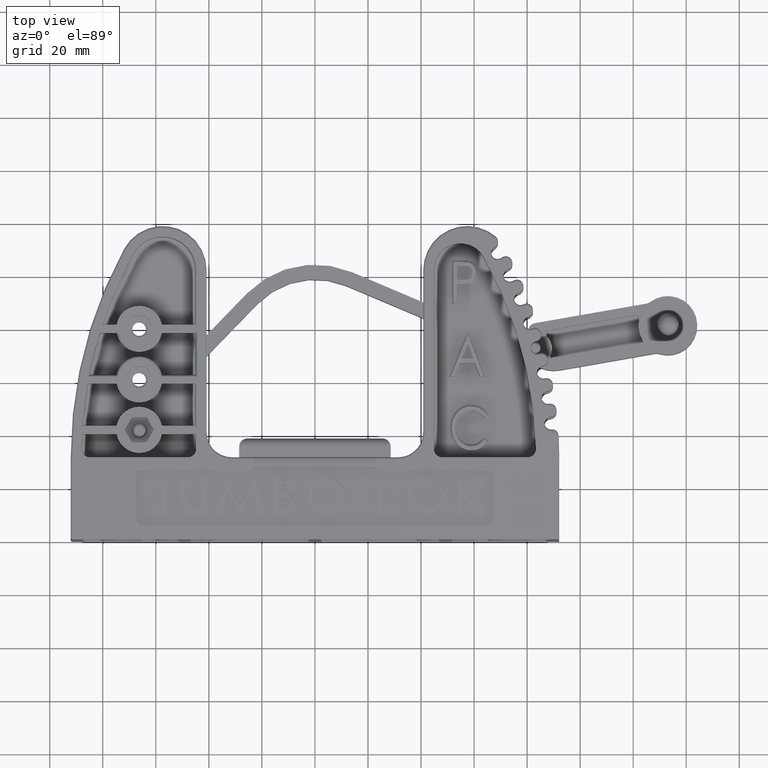
[diagram: clean part render]
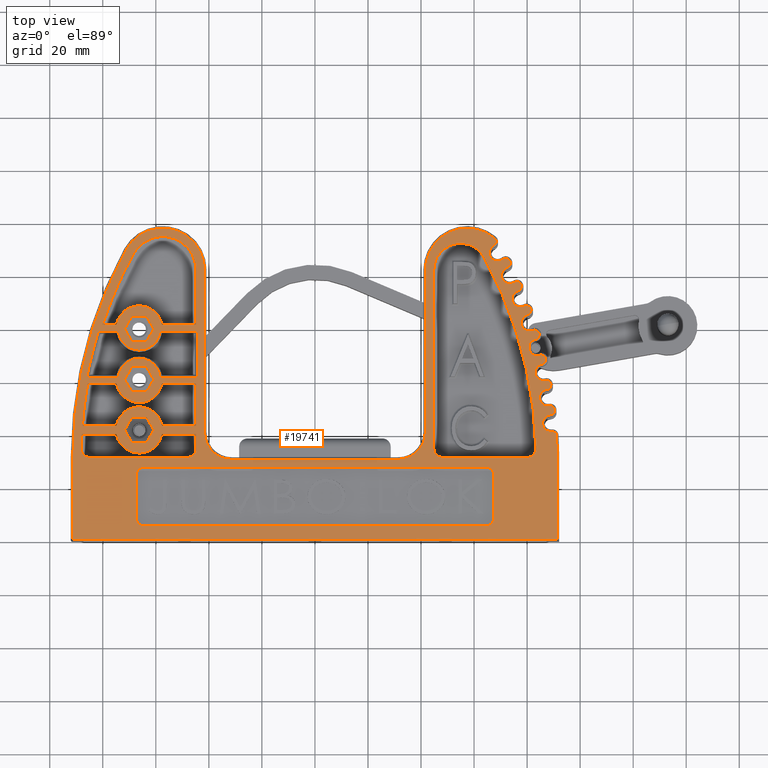
[diagram: same view with one face highlighted and labeled with its STEP entity id]
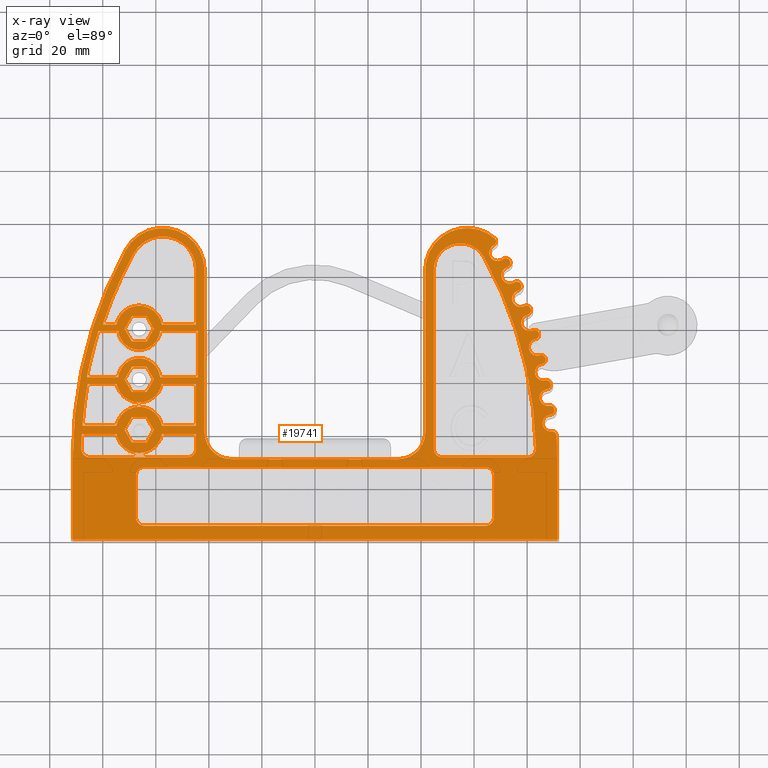
[diagram: x-ray of the same camera — body ghosted, the highlighted face saturated]
A machine part, top view. The second image highlights one B-rep face of the part: STEP entity #19741.
The next image is the same camera in x-ray: the body ghosted, the highlighted face saturated — about 0% of this face is hidden behind the body in this view.
In plain terms, the highlighted planar face has unit normal (0, 0, -1).
Its self-contained STEP definition (entity closure, byte-faithful):
#4080 = FACE_BOUND ( 'NONE', #40605, .T. ) ;
#4097 = FACE_BOUND ( 'NONE', #40604, .T. ) ;
#4103 = FACE_BOUND ( 'NONE', #40621, .T. ) ;
#4105 = FACE_BOUND ( 'NONE', #40639, .T. ) ;
#4106 = FACE_BOUND ( 'NONE', #40631, .T. ) ;
#4108 = FACE_OUTER_BOUND ( 'NONE', #40628, .T. ) ;
#4111 = FACE_BOUND ( 'NONE', #40632, .T. ) ;
#4113 = FACE_BOUND ( 'NONE', #40637, .T. ) ;
#4114 = FACE_BOUND ( 'NONE', #40633, .T. ) ;
#4116 = FACE_BOUND ( 'NONE', #40638, .T. ) ;
#5072 = CIRCLE ( 'NONE', #52405, 6.281500000000001200 ) ;
#5083 = LINE ( 'NONE', #9078, #5084 ) ;
#5084 = VECTOR ( 'NONE', #9079, 39.37007874015748100 ) ;
#5115 = LINE ( 'NONE', #9101, #5116 ) ;
#5116 = VECTOR ( 'NONE', #9102, 39.37007874015748100 ) ;
#5162 = CIRCLE ( 'NONE', #52414, 6.281500000000001200 ) ;
#5171 = LINE ( 'NONE', #9138, #5173 ) ;
#5173 = VECTOR ( 'NONE', #9139, 39.37007874015748100 ) ;
#9060 = CARTESIAN_POINT ( 'NONE',  ( 2.812500000000000000, 1.218250000000000100, 1.093750000000000000 ) ) ;
#9069 = DIRECTION ( 'NONE',  ( 0.0000000000000000000, 0.0000000000000000000, 1.000000000000000000 ) ) ;
#9070 = DIRECTION ( 'NONE',  ( 1.000000000000000000, 0.0000000000000000000, 0.0000000000000000000 ) ) ;
#9078 = CARTESIAN_POINT ( 'NONE',  ( -1.765124999999999800, 1.343250000000001800, 1.093750000000000000 ) ) ;
#9079 = DIRECTION ( 'NONE',  ( 0.0000000000000000000, 1.000000000000000000, 0.0000000000000000000 ) ) ;
#9101 = CARTESIAN_POINT ( 'NONE',  ( -1.765124999999999800, 1.343250000000001800, 1.093750000000000000 ) ) ;
#9102 = DIRECTION ( 'NONE',  ( 0.0000000000000000000, 1.000000000000000000, 0.0000000000000000000 ) ) ;
#9120 = CARTESIAN_POINT ( 'NONE',  ( 2.812500000000000000, 1.218250000000000100, 1.093750000000000000 ) ) ;
#9129 = DIRECTION ( 'NONE',  ( 0.0000000000000000000, 0.0000000000000000000, 1.000000000000000000 ) ) ;
#9130 = DIRECTION ( 'NONE',  ( 1.000000000000000000, 0.0000000000000000000, 0.0000000000000000000 ) ) ;
#9138 = CARTESIAN_POINT ( 'NONE',  ( -1.765124999999999800, 1.343250000000001800, 1.093750000000000000 ) ) ;
#9139 = DIRECTION ( 'NONE',  ( 0.0000000000000000000, 1.000000000000000000, 0.0000000000000000000 ) ) ;
#16588 = EDGE_CURVE ( 'NONE', #52719, #52718, #60500, .T. ) ;
#16612 = EDGE_CURVE ( 'NONE', #52735, #52736, #60547, .T. ) ;
#16613 = EDGE_CURVE ( 'NONE', #52737, #52738, #60549, .T. ) ;
#16614 = EDGE_CURVE ( 'NONE', #52738, #52739, #60542, .T. ) ;
#16615 = EDGE_CURVE ( 'NONE', #52734, #52735, #60550, .T. ) ;
#16616 = EDGE_CURVE ( 'NONE', #52733, #52734, #60553, .T. ) ;
#16617 = EDGE_CURVE ( 'NONE', #52736, #52737, #60546, .T. ) ;
#16618 = EDGE_CURVE ( 'NONE', #52739, #52740, #60554, .T. ) ;
#16619 = EDGE_CURVE ( 'NONE', #52740, #52733, #60556, .T. ) ;
#16620 = EDGE_CURVE ( 'NONE', #52743, #52741, #60560, .T. ) ;
#16621 = EDGE_CURVE ( 'NONE', #52741, #52742, #60559, .T. ) ;
#16622 = EDGE_CURVE ( 'NONE', #52745, #52744, #60563, .T. ) ;
#16623 = EDGE_CURVE ( 'NONE', #52744, #52743, #60562, .T. ) ;
#16624 = EDGE_CURVE ( 'NONE', #52746, #52745, #60561, .T. ) ;
#16625 = EDGE_CURVE ( 'NONE', #52747, #52746, #60567, .T. ) ;
#16626 = EDGE_CURVE ( 'NONE', #52748, #52747, #60566, .T. ) ;
#16627 = EDGE_CURVE ( 'NONE', #52742, #52748, #60571, .T. ) ;
#16628 = EDGE_CURVE ( 'NONE', #52750, #52751, #60570, .T. ) ;
#16629 = EDGE_CURVE ( 'NONE', #53641, #52749, #60569, .T. ) ;
#16630 = EDGE_CURVE ( 'NONE', #52752, #52751, #60575, .T. ) ;
#16631 = EDGE_CURVE ( 'NONE', #52749, #52750, #60577, .T. ) ;
#16632 = EDGE_CURVE ( 'NONE', #52752, #52753, #60574, .T. ) ;
#16633 = EDGE_CURVE ( 'NONE', #52753, #52754, #60580, .T. ) ;
#16634 = EDGE_CURVE ( 'NONE', #52754, #53639, #60568, .T. ) ;
#16635 = EDGE_CURVE ( 'NONE', #53615, #52756, #60581, .T. ) ;
#16636 = EDGE_CURVE ( 'NONE', #52755, #53609, #60579, .T. ) ;
#16637 = EDGE_CURVE ( 'NONE', #52757, #52758, #60584, .T. ) ;
#16638 = EDGE_CURVE ( 'NONE', #53613, #53611, #60587, .T. ) ;
#16639 = EDGE_CURVE ( 'NONE', #52759, #52757, #60588, .T. ) ;
#16640 = EDGE_CURVE ( 'NONE', #52756, #52755, #60590, .T. ) ;
#16641 = EDGE_CURVE ( 'NONE', #52758, #52761, #60591, .T. ) ;
#16642 = EDGE_CURVE ( 'NONE', #53250, #52759, #60592, .T. ) ;
#16643 = EDGE_CURVE ( 'NONE', #52760, #53249, #60593, .T. ) ;
#16644 = EDGE_CURVE ( 'NONE', #53635, #52764, #60595, .T. ) ;
#16645 = EDGE_CURVE ( 'NONE', #52761, #52760, #60594, .T. ) ;
#16646 = EDGE_CURVE ( 'NONE', #52762, #53623, #60589, .T. ) ;
#16647 = EDGE_CURVE ( 'NONE', #52767, #52768, #60600, .T. ) ;
#16648 = EDGE_CURVE ( 'NONE', #52763, #53625, #60602, .T. ) ;
#16649 = EDGE_CURVE ( 'NONE', #52764, #52763, #60601, .T. ) ;
#16650 = EDGE_CURVE ( 'NONE', #53637, #52765, #60597, .T. ) ;
#16651 = EDGE_CURVE ( 'NONE', #52718, #52766, #60604, .T. ) ;
#16652 = EDGE_CURVE ( 'NONE', #52765, #52762, #60607, .T. ) ;
#16653 = EDGE_CURVE ( 'NONE', #52768, #53137, #60599, .T. ) ;
#16654 = EDGE_CURVE ( 'NONE', #52766, #52767, #60609, .T. ) ;
#16655 = EDGE_CURVE ( 'NONE', #52770, #52771, #60610, .T. ) ;
#16656 = EDGE_CURVE ( 'NONE', #53136, #52769, #60612, .T. ) ;
#16657 = EDGE_CURVE ( 'NONE', #52771, #52772, #60614, .T. ) ;
#16658 = EDGE_CURVE ( 'NONE', #52769, #52770, #60606, .T. ) ;
#16659 = EDGE_CURVE ( 'NONE', #52772, #52773, #60616, .T. ) ;
#16660 = EDGE_CURVE ( 'NONE', #52773, #53141, #60608, .T. ) ;
#16661 = EDGE_CURVE ( 'NONE', #52775, #52776, #60618, .T. ) ;
#16662 = EDGE_CURVE ( 'NONE', #53140, #52774, #60620, .T. ) ;
#16663 = EDGE_CURVE ( 'NONE', #52776, #52777, #60622, .T. ) ;
#16664 = EDGE_CURVE ( 'NONE', #52774, #52775, #60617, .T. ) ;
#16665 = EDGE_CURVE ( 'NONE', #52777, #52778, #60624, .T. ) ;
#16666 = EDGE_CURVE ( 'NONE', #52778, #53145, #60615, .T. ) ;
#16667 = EDGE_CURVE ( 'NONE', #52780, #52781, #60626, .T. ) ;
#16668 = EDGE_CURVE ( 'NONE', #53144, #52779, #60628, .T. ) ;
#16669 = EDGE_CURVE ( 'NONE', #52781, #52782, #60630, .T. ) ;
#16670 = EDGE_CURVE ( 'NONE', #52779, #52780, #60625, .T. ) ;
#16671 = EDGE_CURVE ( 'NONE', #52782, #52783, #60632, .T. ) ;
#16672 = EDGE_CURVE ( 'NONE', #52783, #53149, #60623, .T. ) ;
#16673 = EDGE_CURVE ( 'NONE', #52785, #52786, #60634, .T. ) ;
#16674 = EDGE_CURVE ( 'NONE', #53148, #52784, #60636, .T. ) ;
#16675 = EDGE_CURVE ( 'NONE', #52786, #52787, #60638, .T. ) ;
#16676 = EDGE_CURVE ( 'NONE', #52784, #52785, #60633, .T. ) ;
#16677 = EDGE_CURVE ( 'NONE', #52787, #52788, #60640, .T. ) ;
#16678 = EDGE_CURVE ( 'NONE', #52788, #53153, #60631, .T. ) ;
#16679 = EDGE_CURVE ( 'NONE', #52790, #52791, #60642, .T. ) ;
#16680 = EDGE_CURVE ( 'NONE', #53152, #52789, #60644, .T. ) ;
#16681 = EDGE_CURVE ( 'NONE', #52791, #52792, #60646, .T. ) ;
#16682 = EDGE_CURVE ( 'NONE', #52789, #52790, #60641, .T. ) ;
#16683 = EDGE_CURVE ( 'NONE', #52792, #52793, #60648, .T. ) ;
#16684 = EDGE_CURVE ( 'NONE', #52793, #53157, #60639, .T. ) ;
#16685 = EDGE_CURVE ( 'NONE', #52795, #52796, #60650, .T. ) ;
#16686 = EDGE_CURVE ( 'NONE', #53156, #52794, #60652, .T. ) ;
#16687 = EDGE_CURVE ( 'NONE', #52796, #52797, #60654, .T. ) ;
#16688 = EDGE_CURVE ( 'NONE', #52794, #52795, #60649, .T. ) ;
#16689 = EDGE_CURVE ( 'NONE', #52797, #52798, #60656, .T. ) ;
#16690 = EDGE_CURVE ( 'NONE', #52798, #53161, #60647, .T. ) ;
#16691 = EDGE_CURVE ( 'NONE', #52800, #52801, #60658, .T. ) ;
#16692 = EDGE_CURVE ( 'NONE', #53160, #52799, #60660, .T. ) ;
#16693 = EDGE_CURVE ( 'NONE', #52801, #52802, #60662, .T. ) ;
#16694 = EDGE_CURVE ( 'NONE', #52799, #52800, #60657, .T. ) ;
#16695 = EDGE_CURVE ( 'NONE', #52802, #52803, #60664, .T. ) ;
#16696 = EDGE_CURVE ( 'NONE', #52803, #53165, #60655, .T. ) ;
#16697 = EDGE_CURVE ( 'NONE', #52805, #52806, #60667, .T. ) ;
#16698 = EDGE_CURVE ( 'NONE', #53164, #52804, #60669, .T. ) ;
#16699 = EDGE_CURVE ( 'NONE', #52806, #52807, #60671, .T. ) ;
#16700 = EDGE_CURVE ( 'NONE', #52804, #52805, #60665, .T. ) ;
#16701 = EDGE_CURVE ( 'NONE', #52807, #52808, #60672, .T. ) ;
#16702 = EDGE_CURVE ( 'NONE', #52808, #52809, #60675, .T. ) ;
#16703 = EDGE_CURVE ( 'NONE', #52809, #52810, #60663, .T. ) ;
#16704 = EDGE_CURVE ( 'NONE', #52810, #52811, #60678, .T. ) ;
#16705 = EDGE_CURVE ( 'NONE', #52811, #52812, #60666, .T. ) ;
#16706 = EDGE_CURVE ( 'NONE', #52812, #52813, #60681, .T. ) ;
#16707 = EDGE_CURVE ( 'NONE', #52813, #52814, #60683, .T. ) ;
#16708 = EDGE_CURVE ( 'NONE', #52814, #52719, #60676, .T. ) ;
#16709 = EDGE_CURVE ( 'NONE', #52817, #52815, #60684, .T. ) ;
#16710 = EDGE_CURVE ( 'NONE', #52815, #52816, #60682, .T. ) ;
#16711 = EDGE_CURVE ( 'NONE', #52819, #52818, #60679, .T. ) ;
#16712 = EDGE_CURVE ( 'NONE', #52818, #52817, #60677, .T. ) ;
#16713 = EDGE_CURVE ( 'NONE', #52820, #52819, #60687, .T. ) ;
#16714 = EDGE_CURVE ( 'NONE', #52816, #52820, #60689, .T. ) ;
#16715 = EDGE_CURVE ( 'NONE', #52823, #52821, #60691, .T. ) ;
#16716 = EDGE_CURVE ( 'NONE', #52821, #52822, #60693, .T. ) ;
#16717 = EDGE_CURVE ( 'NONE', #52825, #52824, #60695, .T. ) ;
#16718 = EDGE_CURVE ( 'NONE', #52824, #52823, #60697, .T. ) ;
#16719 = EDGE_CURVE ( 'NONE', #52826, #52825, #60699, .T. ) ;
#16720 = EDGE_CURVE ( 'NONE', #52822, #52826, #60701, .T. ) ;
#16721 = EDGE_CURVE ( 'NONE', #52829, #52827, #60703, .T. ) ;
#16722 = EDGE_CURVE ( 'NONE', #52827, #52828, #60705, .T. ) ;
#16723 = EDGE_CURVE ( 'NONE', #52831, #52830, #60707, .T. ) ;
#16724 = EDGE_CURVE ( 'NONE', #52830, #52829, #60709, .T. ) ;
#16725 = EDGE_CURVE ( 'NONE', #52832, #52831, #60711, .T. ) ;
#16726 = EDGE_CURVE ( 'NONE', #52828, #52832, #60713, .T. ) ;
#19741 = ADVANCED_FACE ( 'NONE', ( #4080, #4106, #4111, #4114, #4097, #4103, #4108, #4113, #4116, #4105 ), #28975, .F. ) ;
#21632 = EDGE_CURVE ( 'NONE', #53137, #53136, #30744, .T. ) ;
#21636 = EDGE_CURVE ( 'NONE', #53141, #53140, #30748, .T. ) ;
#21640 = EDGE_CURVE ( 'NONE', #53145, #53144, #30752, .T. ) ;
#21644 = EDGE_CURVE ( 'NONE', #53149, #53148, #30756, .T. ) ;
#21648 = EDGE_CURVE ( 'NONE', #53153, #53152, #30760, .T. ) ;
#21652 = EDGE_CURVE ( 'NONE', #53157, #53156, #30764, .T. ) ;
#21656 = EDGE_CURVE ( 'NONE', #53161, #53160, #30769, .T. ) ;
#21660 = EDGE_CURVE ( 'NONE', #53165, #53164, #30773, .T. ) ;
#21765 = EDGE_CURVE ( 'NONE', #53249, #53250, #30915, .T. ) ;
#28975 = PLANE ( 'NONE',  #29874 ) ;
#28983 = CARTESIAN_POINT ( 'NONE',  ( 2.812500000000000000, 1.218250000000000100, 1.093750000000000000 ) ) ;
#28985 = DIRECTION ( 'NONE',  ( -0.0000000000000000000, 0.0000000000000000000, -1.000000000000000000 ) ) ;
#28986 = DIRECTION ( 'NONE',  ( -1.000000000000000000, 0.0000000000000000000, 0.0000000000000000000 ) ) ;
#29874 = AXIS2_PLACEMENT_3D ( 'NONE', #28983, #28985, #28986 ) ;
#30067 = AXIS2_PLACEMENT_3D ( 'NONE', #31598, #31599, #31600 ) ;
#30072 = AXIS2_PLACEMENT_3D ( 'NONE', #31605, #31611, #31612 ) ;
#30076 = AXIS2_PLACEMENT_3D ( 'NONE', #31617, #31623, #31624 ) ;
#30079 = AXIS2_PLACEMENT_3D ( 'NONE', #31634, #31635, #31636 ) ;
#30083 = AXIS2_PLACEMENT_3D ( 'NONE', #31646, #31647, #31648 ) ;
#30087 = AXIS2_PLACEMENT_3D ( 'NONE', #31658, #31659, #31660 ) ;
#30091 = AXIS2_PLACEMENT_3D ( 'NONE', #31670, #31671, #31672 ) ;
#30095 = AXIS2_PLACEMENT_3D ( 'NONE', #31682, #31684, #31685 ) ;
#30167 = AXIS2_PLACEMENT_3D ( 'NONE', #31950, #31965, #31966 ) ;
#30744 = CIRCLE ( 'NONE', #30067, 0.1234999999999999300 ) ;
#30748 = CIRCLE ( 'NONE', #30072, 0.1234999999999999300 ) ;
#30752 = CIRCLE ( 'NONE', #30076, 0.1234999999999999300 ) ;
#30756 = CIRCLE ( 'NONE', #30079, 0.1234999999999999300 ) ;
#30760 = CIRCLE ( 'NONE', #30083, 0.1234999999999999300 ) ;
#30764 = CIRCLE ( 'NONE', #30087, 0.1234999999999999300 ) ;
#30769 = CIRCLE ( 'NONE', #30091, 0.1234999999999999300 ) ;
#30773 = CIRCLE ( 'NONE', #30095, 0.1234999999999999300 ) ;
#30915 = CIRCLE ( 'NONE', #30167, 0.1250000000000004400 ) ;
#31598 = CARTESIAN_POINT ( 'NONE',  ( 3.502668408089255200, 1.725000000000000100, 1.093750000000000000 ) ) ;
#31599 = DIRECTION ( 'NONE',  ( -0.0000000000000000000, -0.0000000000000000000, -1.000000000000000000 ) ) ;
#31600 = DIRECTION ( 'NONE',  ( -1.000000000000000000, 0.0000000000000000000, 0.0000000000000000000 ) ) ;
#31605 = CARTESIAN_POINT ( 'NONE',  ( 3.458958434139745900, 2.104309652005024000, 1.093750000000000000 ) ) ;
#31611 = DIRECTION ( 'NONE',  ( -0.0000000000000000000, -0.0000000000000000000, -1.000000000000000000 ) ) ;
#31612 = DIRECTION ( 'NONE',  ( -1.000000000000000000, 0.0000000000000000000, 0.0000000000000000000 ) ) ;
#31617 = CARTESIAN_POINT ( 'NONE',  ( 3.391550458169296300, 2.480132134970594000, 1.093750000000000000 ) ) ;
#31623 = DIRECTION ( 'NONE',  ( -0.0000000000000000000, -0.0000000000000000000, -1.000000000000000000 ) ) ;
#31624 = DIRECTION ( 'NONE',  ( -1.000000000000000000, 0.0000000000000000000, 0.0000000000000000000 ) ) ;
#31634 = CARTESIAN_POINT ( 'NONE',  ( 3.300709770450725300, 2.850988365040490800, 1.093750000000000000 ) ) ;
#31635 = DIRECTION ( 'NONE',  ( -0.0000000000000000000, -0.0000000000000000000, -1.000000000000000000 ) ) ;
#31636 = DIRECTION ( 'NONE',  ( -1.000000000000000000, 0.0000000000000000000, 0.0000000000000000000 ) ) ;
#31646 = CARTESIAN_POINT ( 'NONE',  ( 3.186793882843443900, 3.215418803502323500, 1.093750000000000000 ) ) ;
#31647 = DIRECTION ( 'NONE',  ( -0.0000000000000000000, -0.0000000000000000000, -1.000000000000000000 ) ) ;
#31648 = DIRECTION ( 'NONE',  ( -1.000000000000000000, 0.0000000000000000000, 0.0000000000000000000 ) ) ;
#31658 = CARTESIAN_POINT ( 'NONE',  ( 3.050251121772727300, 3.571989200936020600, 1.093750000000000000 ) ) ;
#31659 = DIRECTION ( 'NONE',  ( -0.0000000000000000000, -0.0000000000000000000, -1.000000000000000000 ) ) ;
#31660 = DIRECTION ( 'NONE',  ( -1.000000000000000000, 0.0000000000000000000, 0.0000000000000000000 ) ) ;
#31670 = CARTESIAN_POINT ( 'NONE',  ( 2.891618863799951800, 3.919296241833981800, 1.093750000000000000 ) ) ;
#31671 = DIRECTION ( 'NONE',  ( -0.0000000000000000000, -0.0000000000000000000, -1.000000000000000000 ) ) ;
#31672 = DIRECTION ( 'NONE',  ( -1.000000000000000000, 0.0000000000000000000, 0.0000000000000000000 ) ) ;
#31682 = CARTESIAN_POINT ( 'NONE',  ( 2.711521420727836000, 4.255973067477988500, 1.093750000000000000 ) ) ;
#31684 = DIRECTION ( 'NONE',  ( -0.0000000000000000000, -0.0000000000000000000, -1.000000000000000000 ) ) ;
#31685 = DIRECTION ( 'NONE',  ( -1.000000000000000000, 0.0000000000000000000, 0.0000000000000000000 ) ) ;
#31950 = CARTESIAN_POINT ( 'NONE',  ( 3.155191010767899300, 1.343250000000000900, 1.093750000000000000 ) ) ;
#31965 = DIRECTION ( 'NONE',  ( 0.0000000000000000000, 0.0000000000000000000, 1.000000000000000000 ) ) ;
#31966 = DIRECTION ( 'NONE',  ( -1.000000000000000000, 0.0000000000000000000, 0.0000000000000000000 ) ) ;
#35099 = CARTESIAN_POINT ( 'NONE',  ( 3.594999999999999800, 1.326248681189634400E-015, 1.093750000000000000 ) ) ;
#35100 = CARTESIAN_POINT ( 'NONE',  ( -3.594999999999999800, 5.510728592200789400E-018, 1.093750000000000000 ) ) ;
#35114 = CARTESIAN_POINT ( 'NONE',  ( -2.297062806679502200, 2.407500000000000200, 1.093750000000000000 ) ) ;
#35115 = CARTESIAN_POINT ( 'NONE',  ( -2.921187193320498000, 2.407500000000000200, 1.093750000000000000 ) ) ;
#35116 = CARTESIAN_POINT ( 'NONE',  ( -3.385944699075729600, 2.407500000000000200, 1.093750000000000000 ) ) ;
#35117 = CARTESIAN_POINT ( 'NONE',  ( -3.214291782324988600, 3.092500000000000200, 1.093750000000000000 ) ) ;
#35118 = CARTESIAN_POINT ( 'NONE',  ( -2.921187193320498000, 3.092500000000000200, 1.093750000000000000 ) ) ;
#35119 = CARTESIAN_POINT ( 'NONE',  ( -2.297062806679502200, 3.092500000000000200, 1.093750000000000000 ) ) ;
#35120 = CARTESIAN_POINT ( 'NONE',  ( -1.735125000000000000, 3.092499999999999800, 1.093750000000000000 ) ) ;
#35121 = CARTESIAN_POINT ( 'NONE',  ( -1.735125000000000000, 2.407500000000000200, 1.093750000000000000 ) ) ;
#35122 = CARTESIAN_POINT ( 'NONE',  ( -2.656250000000000400, 0.9499999999999999600, 1.093750000000000000 ) ) ;
#35123 = CARTESIAN_POINT ( 'NONE',  ( -2.656250000000000000, 0.3249999999999999600, 1.093750000000000000 ) ) ;
#35124 = CARTESIAN_POINT ( 'NONE',  ( -2.531250000000000000, 1.075000000000000000, 1.093750000000000000 ) ) ;
#35125 = CARTESIAN_POINT ( 'NONE',  ( 2.531250000000000000, 1.075000000000000600, 1.093750000000000000 ) ) ;
#35126 = CARTESIAN_POINT ( 'NONE',  ( 2.656250000000000000, 0.9500000000000006200, 1.093750000000000000 ) ) ;
#35127 = CARTESIAN_POINT ( 'NONE',  ( 2.656250000000000000, 0.3250000000000006200, 1.093750000000000000 ) ) ;
#35128 = CARTESIAN_POINT ( 'NONE',  ( 2.531250000000000000, 0.2000000000000006200, 1.093750000000000000 ) ) ;
#35129 = CARTESIAN_POINT ( 'NONE',  ( -2.531250000000000000, 0.2000000000000000400, 1.093750000000000000 ) ) ;
#35130 = CARTESIAN_POINT ( 'NONE',  ( -2.271104567925251500, 1.687500000000000000, 1.093750000000000000 ) ) ;
#35131 = CARTESIAN_POINT ( 'NONE',  ( -2.947145432074749200, 1.687500000000000000, 1.093750000000000000 ) ) ;
#35132 = CARTESIAN_POINT ( 'NONE',  ( -3.451448170882323000, 1.687500000000000000, 1.093750000000000000 ) ) ;
#35133 = CARTESIAN_POINT ( 'NONE',  ( -3.372955455138287700, 2.312500000000001800, 1.093750000000000000 ) ) ;
#35134 = CARTESIAN_POINT ( 'NONE',  ( -2.947145432074749200, 2.312500000000000400, 1.093750000000000000 ) ) ;
#35135 = CARTESIAN_POINT ( 'NONE',  ( -2.271104567925251500, 2.312500000000000400, 1.093750000000000000 ) ) ;
#35136 = CARTESIAN_POINT ( 'NONE',  ( -2.947145432074749200, 3.187499999999999100, 1.093750000000000000 ) ) ;
#35137 = CARTESIAN_POINT ( 'NONE',  ( -2.271104567925251100, 3.187499999999999100, 1.093750000000000000 ) ) ;
#35138 = CARTESIAN_POINT ( 'NONE',  ( 1.765124999999999400, 4.000000000000000900, 1.093750000000000000 ) ) ;
#35139 = CARTESIAN_POINT ( 'NONE',  ( 1.765124999999999400, 1.343250000000001800, 1.093750000000000000 ) ) ;
#35140 = CARTESIAN_POINT ( 'NONE',  ( 2.506043354292046800, 4.193133626045884900, 1.093750000000000000 ) ) ;
#35141 = CARTESIAN_POINT ( 'NONE',  ( 3.155191010767899300, 1.218250000000000900, 1.093750000000000000 ) ) ;
#35142 = CARTESIAN_POINT ( 'NONE',  ( 1.890125000000000300, 1.218250000000001200, 1.093750000000000000 ) ) ;
#35143 = CARTESIAN_POINT ( 'NONE',  ( -2.271104567925251500, 1.562500000000000000, 1.093750000000000000 ) ) ;
#35144 = CARTESIAN_POINT ( 'NONE',  ( -1.890125000000000900, 1.218250000000000900, 1.093750000000000000 ) ) ;
#35145 = CARTESIAN_POINT ( 'NONE',  ( -3.342730885190254000, 1.218250000000000900, 1.093750000000000000 ) ) ;
#35146 = CARTESIAN_POINT ( 'NONE',  ( -2.947145432074749200, 1.562500000000000000, 1.093750000000000000 ) ) ;
#35147 = CARTESIAN_POINT ( 'NONE',  ( 3.595000000000000200, 1.218250000000001400, 1.093750000000000000 ) ) ;
#35148 = CARTESIAN_POINT ( 'NONE',  ( 3.586817462966116900, 1.541966323618221900, 1.093750000000000000 ) ) ;
#35149 = CARTESIAN_POINT ( 'NONE',  ( 3.518518801444840100, 1.602327219777415200, 1.093750000000000000 ) ) ;
#35150 = CARTESIAN_POINT ( 'NONE',  ( 3.490496254313973300, 1.847898692720756600, 1.093750000000000000 ) ) ;
#35151 = CARTESIAN_POINT ( 'NONE',  ( 3.499460102141469500, 1.848786491701844600, 1.093750000000000000 ) ) ;
#35152 = CARTESIAN_POINT ( 'NONE',  ( 3.556544298886276300, 1.919200047310236200, 1.093750000000000000 ) ) ;
#35153 = CARTESIAN_POINT ( 'NONE',  ( 3.555689103801430700, 1.926927492393213100, 1.093750000000000000 ) ) ;
#35154 = CARTESIAN_POINT ( 'NONE',  ( 3.483722471429600900, 1.983042865740260300, 1.093750000000000000 ) ) ;
#35155 = CARTESIAN_POINT ( 'NONE',  ( 3.439104063713260400, 2.226203269454700300, 1.093750000000000000 ) ) ;
#35156 = CARTESIAN_POINT ( 'NONE',  ( 3.450151112422118200, 2.228002643382343900, 1.093750000000000000 ) ) ;
#35157 = CARTESIAN_POINT ( 'NONE',  ( 3.502734423050462900, 2.301703013249067500, 1.093750000000000000 ) ) ;
#35158 = CARTESIAN_POINT ( 'NONE',  ( 3.501401266048023200, 2.309445240365890100, 1.093750000000000000 ) ) ;
#35159 = CARTESIAN_POINT ( 'NONE',  ( 3.426030959500390600, 2.361090804788422500, 1.093750000000000000 ) ) ;
#35160 = CARTESIAN_POINT ( 'NONE',  ( 3.364092009787678500, 2.600540953636313500, 1.093750000000000000 ) ) ;
#35161 = CARTESIAN_POINT ( 'NONE',  ( 3.378043428783715600, 2.603722484047441100, 1.093750000000000000 ) ) ;
#35162 = CARTESIAN_POINT ( 'NONE',  ( 3.425937483354511800, 2.680424413767875000, 1.093750000000000000 ) ) ;
#35163 = CARTESIAN_POINT ( 'NONE',  ( 3.424113388474016700, 2.688185268202870000, 1.093750000000000000 ) ) ;
#35164 = CARTESIAN_POINT ( 'NONE',  ( 3.345617639307309600, 2.735152626268278800, 1.093750000000000000 ) ) ;
#35165 = CARTESIAN_POINT ( 'NONE',  ( 3.265755309356367600, 2.969438504971193500, 1.093750000000000000 ) ) ;
#35166 = CARTESIAN_POINT ( 'NONE',  ( 3.283352748598604700, 2.974631483263266300, 1.093750000000000000 ) ) ;
#35167 = CARTESIAN_POINT ( 'NONE',  ( 3.326386947923678100, 3.054039555099469400, 1.093750000000000000 ) ) ;
#35168 = CARTESIAN_POINT ( 'NONE',  ( 3.324054800788752500, 3.061820293456833000, 1.093750000000000000 ) ) ;
#35169 = CARTESIAN_POINT ( 'NONE',  ( 3.242724885667839000, 3.103917834688065800, 1.093750000000000000 ) ) ;
#35170 = CARTESIAN_POINT ( 'NONE',  ( 3.144480975524385000, 3.331444093306783500, 1.093750000000000000 ) ) ;
#35171 = CARTESIAN_POINT ( 'NONE',  ( 3.166363974419689900, 3.339424537102103000, 1.093750000000000000 ) ) ;
#35172 = CARTESIAN_POINT ( 'NONE',  ( 3.204385963780718600, 3.421234237088083100, 1.093750000000000000 ) ) ;
#35173 = CARTESIAN_POINT ( 'NONE',  ( 3.201524907118141500, 3.429032817592587700, 1.093750000000000000 ) ) ;
#35174 = CARTESIAN_POINT ( 'NONE',  ( 3.117664195896814800, 3.466086575118885200, 1.093750000000000000 ) ) ;
#35175 = CARTESIAN_POINT ( 'NONE',  ( 3.000746294557119900, 3.685133012443115000, 1.093750000000000000 ) ) ;
#35176 = CARTESIAN_POINT ( 'NONE',  ( 3.027431374202278900, 3.696808774815548900, 1.093750000000000000 ) ) ;
#35177 = CARTESIAN_POINT ( 'NONE',  ( 3.060307458142892400, 3.780707572249972800, 1.093750000000000000 ) ) ;
#35178 = CARTESIAN_POINT ( 'NONE',  ( 3.056893381795293200, 3.788517997648809500, 1.093750000000000000 ) ) ;
#35179 = CARTESIAN_POINT ( 'NONE',  ( 2.970816324331676700, 3.820372458435828700, 1.093750000000000000 ) ) ;
#35180 = CARTESIAN_POINT ( 'NONE',  ( 2.835116947476421100, 4.029113287194748600, 1.093750000000000000 ) ) ;
#35181 = CARTESIAN_POINT ( 'NONE',  ( 2.866978740371495700, 4.045506483261543300, 1.093750000000000000 ) ) ;
#35182 = CARTESIAN_POINT ( 'NONE',  ( 2.894594239663868400, 4.131174920006606600, 1.093750000000000000 ) ) ;
#35183 = CARTESIAN_POINT ( 'NONE',  ( 2.890600358959208600, 4.138986644348363200, 1.093750000000000000 ) ) ;
#35184 = CARTESIAN_POINT ( 'NONE',  ( 2.802631411963337500, 4.165505508065300500, 1.093750000000000000 ) ) ;
#35185 = CARTESIAN_POINT ( 'NONE',  ( 2.648244783771041900, 4.362031151636802700, 1.093750000000000000 ) ) ;
#35186 = CARTESIAN_POINT ( 'NONE',  ( 2.657790511193205000, 4.367726347183388900, 1.093750000000000000 ) ) ;
#35187 = CARTESIAN_POINT ( 'NONE',  ( 2.666762891842701800, 4.470748742238492400, 1.093750000000000000 ) ) ;
#35188 = CARTESIAN_POINT ( 'NONE',  ( 1.639124999999999900, 4.000000000000000900, 1.093750000000000000 ) ) ;
#35189 = CARTESIAN_POINT ( 'NONE',  ( 1.639124999999999900, 1.593250000000000500, 1.093750000000000000 ) ) ;
#35190 = CARTESIAN_POINT ( 'NONE',  ( 1.234124999999999700, 1.188250000000000700, 1.093750000000000000 ) ) ;
#35191 = CARTESIAN_POINT ( 'NONE',  ( -1.234125000000000100, 1.188250000000000000, 1.093750000000000000 ) ) ;
#35192 = CARTESIAN_POINT ( 'NONE',  ( -1.639124999999999900, 1.593250000000000100, 1.093750000000000000 ) ) ;
#35193 = CARTESIAN_POINT ( 'NONE',  ( -1.639125000000000600, 4.000000000000000000, 1.093750000000000000 ) ) ;
#35194 = CARTESIAN_POINT ( 'NONE',  ( -2.805845309985799400, 4.298875298175772700, 1.093750000000000000 ) ) ;
#35195 = CARTESIAN_POINT ( 'NONE',  ( -3.595000000000000600, 1.218250000000000100, 1.093750000000000000 ) ) ;
#35196 = CARTESIAN_POINT ( 'NONE',  ( -2.392618649053890800, 2.375000000000000900, 1.093750000000000000 ) ) ;
#35197 = CARTESIAN_POINT ( 'NONE',  ( -2.500871824526945500, 2.562500000000000400, 1.093750000000000000 ) ) ;
#35198 = CARTESIAN_POINT ( 'NONE',  ( -2.500871824526945900, 2.187500000000000400, 1.093750000000000000 ) ) ;
#35199 = CARTESIAN_POINT ( 'NONE',  ( -2.717378175473054800, 2.187500000000000400, 1.093750000000000000 ) ) ;
#35200 = CARTESIAN_POINT ( 'NONE',  ( -2.825631350946110000, 2.375000000000000900, 1.093750000000000000 ) ) ;
#35201 = CARTESIAN_POINT ( 'NONE',  ( -2.717378175473055300, 2.562500000000000400, 1.093750000000000000 ) ) ;
#35202 = CARTESIAN_POINT ( 'NONE',  ( -2.392618649053890300, 1.624999999999999800, 1.093750000000000000 ) ) ;
#35203 = CARTESIAN_POINT ( 'NONE',  ( -2.500871824526944100, 1.812499999999999800, 1.093750000000000000 ) ) ;
#35204 = CARTESIAN_POINT ( 'NONE',  ( -2.500871824526945500, 1.437499999999999600, 1.093750000000000000 ) ) ;
#35205 = CARTESIAN_POINT ( 'NONE',  ( -2.717378175473054800, 1.437499999999999600, 1.093750000000000000 ) ) ;
#35206 = CARTESIAN_POINT ( 'NONE',  ( -2.825631350946109100, 1.624999999999999600, 1.093750000000000000 ) ) ;
#35207 = CARTESIAN_POINT ( 'NONE',  ( -2.717378175473054400, 1.812499999999999800, 1.093750000000000000 ) ) ;
#35208 = CARTESIAN_POINT ( 'NONE',  ( -2.392618649053891200, 3.125000000000000000, 1.093750000000000000 ) ) ;
#35209 = CARTESIAN_POINT ( 'NONE',  ( -2.500871824526946300, 3.312500000000000400, 1.093750000000000000 ) ) ;
#35210 = CARTESIAN_POINT ( 'NONE',  ( -2.500871824526945900, 2.937500000000000400, 1.093750000000000000 ) ) ;
#35211 = CARTESIAN_POINT ( 'NONE',  ( -2.717378175473055300, 2.937500000000000400, 1.093750000000000000 ) ) ;
#35212 = CARTESIAN_POINT ( 'NONE',  ( -2.825631350946110400, 3.125000000000000900, 1.093750000000000000 ) ) ;
#35213 = CARTESIAN_POINT ( 'NONE',  ( -2.717378175473055700, 3.312500000000000400, 1.093750000000000000 ) ) ;
#37228 = CARTESIAN_POINT ( 'NONE',  ( 3.379168408089255200, 1.725000000000000100, 1.093750000000000000 ) ) ;
#37229 = CARTESIAN_POINT ( 'NONE',  ( 3.511638037493611800, 1.601826156395326900, 1.093750000000000000 ) ) ;
#37232 = CARTESIAN_POINT ( 'NONE',  ( 3.335458434139746000, 2.104309652005024000, 1.093750000000000000 ) ) ;
#37233 = CARTESIAN_POINT ( 'NONE',  ( 3.475633835012343000, 1.981940615865409600, 1.093750000000000000 ) ) ;
#37236 = CARTESIAN_POINT ( 'NONE',  ( 3.268050458169296400, 2.480132134970594000, 1.093750000000000000 ) ) ;
#37237 = CARTESIAN_POINT ( 'NONE',  ( 3.415866002940351400, 2.359049500862779400, 1.093750000000000000 ) ) ;
#37240 = CARTESIAN_POINT ( 'NONE',  ( 3.177209770450725400, 2.850988365040490800, 1.093750000000000000 ) ) ;
#37241 = CARTESIAN_POINT ( 'NONE',  ( 3.332569763063306700, 2.731668664778018400, 1.093750000000000000 ) ) ;
#37244 = CARTESIAN_POINT ( 'NONE',  ( 3.063293882843443900, 3.215418803502323500, 1.093750000000000000 ) ) ;
#37245 = CARTESIAN_POINT ( 'NONE',  ( 3.226072935374081100, 3.098331630710871000, 1.093750000000000000 ) ) ;
#37248 = CARTESIAN_POINT ( 'NONE',  ( 2.926751121772727300, 3.571989200936020600, 1.093750000000000000 ) ) ;
#37249 = CARTESIAN_POINT ( 'NONE',  ( 3.096794647907086700, 3.457595362924612600, 1.093750000000000000 ) ) ;
#37252 = CARTESIAN_POINT ( 'NONE',  ( 2.768118863799951900, 3.919296241833981800, 1.093750000000000000 ) ) ;
#37253 = CARTESIAN_POINT ( 'NONE',  ( 2.945243687221454000, 3.808045946045553400, 1.093750000000000000 ) ) ;
#37256 = CARTESIAN_POINT ( 'NONE',  ( 2.588021420727836000, 4.255973067477988500, 1.093750000000000000 ) ) ;
#37257 = CARTESIAN_POINT ( 'NONE',  ( 2.772016496024857000, 4.148304149656698100, 1.093750000000000000 ) ) ;
#37341 = CARTESIAN_POINT ( 'NONE',  ( 3.280191010767899800, 1.343250000000000900, 1.093750000000000000 ) ) ;
#37342 = CARTESIAN_POINT ( 'NONE',  ( 3.280163598528996500, 1.345867691405596700, 1.093750000000000000 ) ) ;
#37701 = CARTESIAN_POINT ( 'NONE',  ( -3.152338362227429700, 3.187500000000000000, 1.093750000000000000 ) ) ;
#37703 = CARTESIAN_POINT ( 'NONE',  ( -2.695363607440623100, 4.238296478422336500, 1.093750000000000000 ) ) ;
#37705 = CARTESIAN_POINT ( 'NONE',  ( -1.765124999999999800, 4.000000000000000000, 1.093750000000000000 ) ) ;
#37707 = CARTESIAN_POINT ( 'NONE',  ( -1.765124999999999800, 3.187500000000000000, 1.093750000000000000 ) ) ;
#37715 = CARTESIAN_POINT ( 'NONE',  ( -1.765124999999999800, 1.562500000000000000, 1.093750000000000000 ) ) ;
#37717 = CARTESIAN_POINT ( 'NONE',  ( -1.765124999999999800, 1.343250000000001800, 1.093750000000000000 ) ) ;
#37727 = CARTESIAN_POINT ( 'NONE',  ( -3.467705117408036700, 1.345787968001300100, 1.093750000000000000 ) ) ;
#37729 = CARTESIAN_POINT ( 'NONE',  ( -3.459559804203080200, 1.562500000000000000, 1.093750000000000000 ) ) ;
#37731 = CARTESIAN_POINT ( 'NONE',  ( -1.765124999999999800, 2.312500000000000400, 1.093750000000000000 ) ) ;
#37733 = CARTESIAN_POINT ( 'NONE',  ( -1.765124999999999800, 1.687500000000000000, 1.093750000000000000 ) ) ;
#40604 = EDGE_LOOP ( 'NONE', ( #55150, #55151, #55152, #55153, #55154, #55155, #55156 ) ) ;
#40605 = EDGE_LOOP ( 'NONE', ( #55120, #55121, #55122, #55123, #55124, #55125, #55126, #55127 ) ) ;
#40621 = EDGE_LOOP ( 'NONE', ( #55157, #55158, #55159, #55160, #55161, #55162, #55163, #55164 ) ) ;
#40628 = EDGE_LOOP ( 'NONE', ( #55165, #55166, #55167, #55168, #55169, #55170, #55171, #55172, #55173, #55174, #55175, #55176, #55177, #55178, #55179, #55180, #55181, #55182, #55183, #55184, #55185, #55186, #55187, #55188, #55189, #55190, #55191, #55192, #55193, #55194, #55195, #55196, #55197, #55198, #55199, #55200, #55201, #55202, #55203, #55204, #55205, #55206, #55207, #55208, #55209, #55210, #55211, #55212, #55213, #55214, #55215, #55216, #55217, #55218, #55219, #55220, #55221, #55222, #55223, #55224, #55225, #55226, #55227, #55228, #55229, #55230, #55231 ) ) ;
#40631 = EDGE_LOOP ( 'NONE', ( #55128, #55129, #55130, #55131, #55132, #55133, #55134, #55135 ) ) ;
#40632 = EDGE_LOOP ( 'NONE', ( #55136, #55137, #55138, #55139, #55140, #55141, #55142, #55143 ) ) ;
#40633 = EDGE_LOOP ( 'NONE', ( #55144, #55145, #55146, #55147, #55148, #55149 ) ) ;
#40637 = EDGE_LOOP ( 'NONE', ( #55232, #55233, #55234, #55235, #55236, #55237 ) ) ;
#40638 = EDGE_LOOP ( 'NONE', ( #55238, #55239, #55240, #55241, #55242, #55243 ) ) ;
#40639 = EDGE_LOOP ( 'NONE', ( #55244, #55245, #55246, #55247, #55248, #55249 ) ) ;
#52405 = AXIS2_PLACEMENT_3D ( 'NONE', #9060, #9069, #9070 ) ;
#52414 = AXIS2_PLACEMENT_3D ( 'NONE', #9120, #9129, #9130 ) ;
#52718 = VERTEX_POINT ( 'NONE', #35099 ) ;
#52719 = VERTEX_POINT ( 'NONE', #35100 ) ;
#52733 = VERTEX_POINT ( 'NONE', #35114 ) ;
#52734 = VERTEX_POINT ( 'NONE', #35115 ) ;
#52735 = VERTEX_POINT ( 'NONE', #35116 ) ;
#52736 = VERTEX_POINT ( 'NONE', #35117 ) ;
#52737 = VERTEX_POINT ( 'NONE', #35118 ) ;
#52738 = VERTEX_POINT ( 'NONE', #35119 ) ;
#52739 = VERTEX_POINT ( 'NONE', #35120 ) ;
#52740 = VERTEX_POINT ( 'NONE', #35121 ) ;
#52741 = VERTEX_POINT ( 'NONE', #35122 ) ;
#52742 = VERTEX_POINT ( 'NONE', #35123 ) ;
#52743 = VERTEX_POINT ( 'NONE', #35124 ) ;
#52744 = VERTEX_POINT ( 'NONE', #35125 ) ;
#52745 = VERTEX_POINT ( 'NONE', #35126 ) ;
#52746 = VERTEX_POINT ( 'NONE', #35127 ) ;
#52747 = VERTEX_POINT ( 'NONE', #35128 ) ;
#52748 = VERTEX_POINT ( 'NONE', #35129 ) ;
#52749 = VERTEX_POINT ( 'NONE', #35130 ) ;
#52750 = VERTEX_POINT ( 'NONE', #35131 ) ;
#52751 = VERTEX_POINT ( 'NONE', #35132 ) ;
#52752 = VERTEX_POINT ( 'NONE', #35133 ) ;
#52753 = VERTEX_POINT ( 'NONE', #35134 ) ;
#52754 = VERTEX_POINT ( 'NONE', #35135 ) ;
#52755 = VERTEX_POINT ( 'NONE', #35136 ) ;
#52756 = VERTEX_POINT ( 'NONE', #35137 ) ;
#52757 = VERTEX_POINT ( 'NONE', #35138 ) ;
#52758 = VERTEX_POINT ( 'NONE', #35139 ) ;
#52759 = VERTEX_POINT ( 'NONE', #35140 ) ;
#52760 = VERTEX_POINT ( 'NONE', #35141 ) ;
#52761 = VERTEX_POINT ( 'NONE', #35142 ) ;
#52762 = VERTEX_POINT ( 'NONE', #35143 ) ;
#52763 = VERTEX_POINT ( 'NONE', #35144 ) ;
#52764 = VERTEX_POINT ( 'NONE', #35145 ) ;
#52765 = VERTEX_POINT ( 'NONE', #35146 ) ;
#52766 = VERTEX_POINT ( 'NONE', #35147 ) ;
#52767 = VERTEX_POINT ( 'NONE', #35148 ) ;
#52768 = VERTEX_POINT ( 'NONE', #35149 ) ;
#52769 = VERTEX_POINT ( 'NONE', #35150 ) ;
#52770 = VERTEX_POINT ( 'NONE', #35151 ) ;
#52771 = VERTEX_POINT ( 'NONE', #35152 ) ;
#52772 = VERTEX_POINT ( 'NONE', #35153 ) ;
#52773 = VERTEX_POINT ( 'NONE', #35154 ) ;
#52774 = VERTEX_POINT ( 'NONE', #35155 ) ;
#52775 = VERTEX_POINT ( 'NONE', #35156 ) ;
#52776 = VERTEX_POINT ( 'NONE', #35157 ) ;
#52777 = VERTEX_POINT ( 'NONE', #35158 ) ;
#52778 = VERTEX_POINT ( 'NONE', #35159 ) ;
#52779 = VERTEX_POINT ( 'NONE', #35160 ) ;
#52780 = VERTEX_POINT ( 'NONE', #35161 ) ;
#52781 = VERTEX_POINT ( 'NONE', #35162 ) ;
#52782 = VERTEX_POINT ( 'NONE', #35163 ) ;
#52783 = VERTEX_POINT ( 'NONE', #35164 ) ;
#52784 = VERTEX_POINT ( 'NONE', #35165 ) ;
#52785 = VERTEX_POINT ( 'NONE', #35166 ) ;
#52786 = VERTEX_POINT ( 'NONE', #35167 ) ;
#52787 = VERTEX_POINT ( 'NONE', #35168 ) ;
#52788 = VERTEX_POINT ( 'NONE', #35169 ) ;
#52789 = VERTEX_POINT ( 'NONE', #35170 ) ;
#52790 = VERTEX_POINT ( 'NONE', #35171 ) ;
#52791 = VERTEX_POINT ( 'NONE', #35172 ) ;
#52792 = VERTEX_POINT ( 'NONE', #35173 ) ;
#52793 = VERTEX_POINT ( 'NONE', #35174 ) ;
#52794 = VERTEX_POINT ( 'NONE', #35175 ) ;
#52795 = VERTEX_POINT ( 'NONE', #35176 ) ;
#52796 = VERTEX_POINT ( 'NONE', #35177 ) ;
#52797 = VERTEX_POINT ( 'NONE', #35178 ) ;
#52798 = VERTEX_POINT ( 'NONE', #35179 ) ;
#52799 = VERTEX_POINT ( 'NONE', #35180 ) ;
#52800 = VERTEX_POINT ( 'NONE', #35181 ) ;
#52801 = VERTEX_POINT ( 'NONE', #35182 ) ;
#52802 = VERTEX_POINT ( 'NONE', #35183 ) ;
#52803 = VERTEX_POINT ( 'NONE', #35184 ) ;
#52804 = VERTEX_POINT ( 'NONE', #35185 ) ;
#52805 = VERTEX_POINT ( 'NONE', #35186 ) ;
#52806 = VERTEX_POINT ( 'NONE', #35187 ) ;
#52807 = VERTEX_POINT ( 'NONE', #35188 ) ;
#52808 = VERTEX_POINT ( 'NONE', #35189 ) ;
#52809 = VERTEX_POINT ( 'NONE', #35190 ) ;
#52810 = VERTEX_POINT ( 'NONE', #35191 ) ;
#52811 = VERTEX_POINT ( 'NONE', #35192 ) ;
#52812 = VERTEX_POINT ( 'NONE', #35193 ) ;
#52813 = VERTEX_POINT ( 'NONE', #35194 ) ;
#52814 = VERTEX_POINT ( 'NONE', #35195 ) ;
#52815 = VERTEX_POINT ( 'NONE', #35196 ) ;
#52816 = VERTEX_POINT ( 'NONE', #35197 ) ;
#52817 = VERTEX_POINT ( 'NONE', #35198 ) ;
#52818 = VERTEX_POINT ( 'NONE', #35199 ) ;
#52819 = VERTEX_POINT ( 'NONE', #35200 ) ;
#52820 = VERTEX_POINT ( 'NONE', #35201 ) ;
#52821 = VERTEX_POINT ( 'NONE', #35202 ) ;
#52822 = VERTEX_POINT ( 'NONE', #35203 ) ;
#52823 = VERTEX_POINT ( 'NONE', #35204 ) ;
#52824 = VERTEX_POINT ( 'NONE', #35205 ) ;
#52825 = VERTEX_POINT ( 'NONE', #35206 ) ;
#52826 = VERTEX_POINT ( 'NONE', #35207 ) ;
#52827 = VERTEX_POINT ( 'NONE', #35208 ) ;
#52828 = VERTEX_POINT ( 'NONE', #35209 ) ;
#52829 = VERTEX_POINT ( 'NONE', #35210 ) ;
#52830 = VERTEX_POINT ( 'NONE', #35211 ) ;
#52831 = VERTEX_POINT ( 'NONE', #35212 ) ;
#52832 = VERTEX_POINT ( 'NONE', #35213 ) ;
#53136 = VERTEX_POINT ( 'NONE', #37228 ) ;
#53137 = VERTEX_POINT ( 'NONE', #37229 ) ;
#53140 = VERTEX_POINT ( 'NONE', #37232 ) ;
#53141 = VERTEX_POINT ( 'NONE', #37233 ) ;
#53144 = VERTEX_POINT ( 'NONE', #37236 ) ;
#53145 = VERTEX_POINT ( 'NONE', #37237 ) ;
#53148 = VERTEX_POINT ( 'NONE', #37240 ) ;
#53149 = VERTEX_POINT ( 'NONE', #37241 ) ;
#53152 = VERTEX_POINT ( 'NONE', #37244 ) ;
#53153 = VERTEX_POINT ( 'NONE', #37245 ) ;
#53156 = VERTEX_POINT ( 'NONE', #37248 ) ;
#53157 = VERTEX_POINT ( 'NONE', #37249 ) ;
#53160 = VERTEX_POINT ( 'NONE', #37252 ) ;
#53161 = VERTEX_POINT ( 'NONE', #37253 ) ;
#53164 = VERTEX_POINT ( 'NONE', #37256 ) ;
#53165 = VERTEX_POINT ( 'NONE', #37257 ) ;
#53249 = VERTEX_POINT ( 'NONE', #37341 ) ;
#53250 = VERTEX_POINT ( 'NONE', #37342 ) ;
#53609 = VERTEX_POINT ( 'NONE', #37701 ) ;
#53611 = VERTEX_POINT ( 'NONE', #37703 ) ;
#53613 = VERTEX_POINT ( 'NONE', #37705 ) ;
#53615 = VERTEX_POINT ( 'NONE', #37707 ) ;
#53623 = VERTEX_POINT ( 'NONE', #37715 ) ;
#53625 = VERTEX_POINT ( 'NONE', #37717 ) ;
#53635 = VERTEX_POINT ( 'NONE', #37727 ) ;
#53637 = VERTEX_POINT ( 'NONE', #37729 ) ;
#53639 = VERTEX_POINT ( 'NONE', #37731 ) ;
#53641 = VERTEX_POINT ( 'NONE', #37733 ) ;
#55120 = ORIENTED_EDGE ( 'NONE', *, *, #16616, .T. ) ;
#55121 = ORIENTED_EDGE ( 'NONE', *, *, #16615, .T. ) ;
#55122 = ORIENTED_EDGE ( 'NONE', *, *, #16612, .T. ) ;
#55123 = ORIENTED_EDGE ( 'NONE', *, *, #16617, .T. ) ;
#55124 = ORIENTED_EDGE ( 'NONE', *, *, #16613, .T. ) ;
#55125 = ORIENTED_EDGE ( 'NONE', *, *, #16614, .T. ) ;
#55126 = ORIENTED_EDGE ( 'NONE', *, *, #16618, .T. ) ;
#55127 = ORIENTED_EDGE ( 'NONE', *, *, #16619, .T. ) ;
#55128 = ORIENTED_EDGE ( 'NONE', *, *, #16621, .F. ) ;
#55129 = ORIENTED_EDGE ( 'NONE', *, *, #16620, .F. ) ;
#55130 = ORIENTED_EDGE ( 'NONE', *, *, #16623, .F. ) ;
#55131 = ORIENTED_EDGE ( 'NONE', *, *, #16622, .F. ) ;
#55132 = ORIENTED_EDGE ( 'NONE', *, *, #16624, .F. ) ;
#55133 = ORIENTED_EDGE ( 'NONE', *, *, #16625, .F. ) ;
#55134 = ORIENTED_EDGE ( 'NONE', *, *, #16626, .F. ) ;
#55135 = ORIENTED_EDGE ( 'NONE', *, *, #16627, .F. ) ;
#55136 = ORIENTED_EDGE ( 'NONE', *, *, #59025, .F. ) ;
#55137 = ORIENTED_EDGE ( 'NONE', *, *, #16629, .T. ) ;
#55138 = ORIENTED_EDGE ( 'NONE', *, *, #16631, .T. ) ;
#55139 = ORIENTED_EDGE ( 'NONE', *, *, #16628, .T. ) ;
#55140 = ORIENTED_EDGE ( 'NONE', *, *, #16630, .F. ) ;
#55141 = ORIENTED_EDGE ( 'NONE', *, *, #16632, .T. ) ;
#55142 = ORIENTED_EDGE ( 'NONE', *, *, #16633, .T. ) ;
#55143 = ORIENTED_EDGE ( 'NONE', *, *, #16634, .T. ) ;
#55144 = ORIENTED_EDGE ( 'NONE', *, *, #16636, .T. ) ;
#55145 = ORIENTED_EDGE ( 'NONE', *, *, #58995, .F. ) ;
#55146 = ORIENTED_EDGE ( 'NONE', *, *, #16638, .F. ) ;
#55147 = ORIENTED_EDGE ( 'NONE', *, *, #58999, .F. ) ;
#55148 = ORIENTED_EDGE ( 'NONE', *, *, #16635, .T. ) ;
#55149 = ORIENTED_EDGE ( 'NONE', *, *, #16640, .T. ) ;
#55150 = ORIENTED_EDGE ( 'NONE', *, *, #16637, .F. ) ;
#55151 = ORIENTED_EDGE ( 'NONE', *, *, #16639, .F. ) ;
#55152 = ORIENTED_EDGE ( 'NONE', *, *, #16642, .F. ) ;
#55153 = ORIENTED_EDGE ( 'NONE', *, *, #21765, .F. ) ;
#55154 = ORIENTED_EDGE ( 'NONE', *, *, #16643, .F. ) ;
#55155 = ORIENTED_EDGE ( 'NONE', *, *, #16645, .F. ) ;
#55156 = ORIENTED_EDGE ( 'NONE', *, *, #16641, .F. ) ;
#55157 = ORIENTED_EDGE ( 'NONE', *, *, #16646, .T. ) ;
#55158 = ORIENTED_EDGE ( 'NONE', *, *, #59009, .F. ) ;
#55159 = ORIENTED_EDGE ( 'NONE', *, *, #16648, .F. ) ;
#55160 = ORIENTED_EDGE ( 'NONE', *, *, #16649, .F. ) ;
#55161 = ORIENTED_EDGE ( 'NONE', *, *, #16644, .F. ) ;
#55162 = ORIENTED_EDGE ( 'NONE', *, *, #59021, .F. ) ;
#55163 = ORIENTED_EDGE ( 'NONE', *, *, #16650, .T. ) ;
#55164 = ORIENTED_EDGE ( 'NONE', *, *, #16652, .T. ) ;
#55165 = ORIENTED_EDGE ( 'NONE', *, *, #16588, .T. ) ;
#55166 = ORIENTED_EDGE ( 'NONE', *, *, #16651, .T. ) ;
#55167 = ORIENTED_EDGE ( 'NONE', *, *, #16654, .T. ) ;
#55168 = ORIENTED_EDGE ( 'NONE', *, *, #16647, .T. ) ;
#55169 = ORIENTED_EDGE ( 'NONE', *, *, #16653, .T. ) ;
#55170 = ORIENTED_EDGE ( 'NONE', *, *, #21632, .T. ) ;
#55171 = ORIENTED_EDGE ( 'NONE', *, *, #16656, .T. ) ;
#55172 = ORIENTED_EDGE ( 'NONE', *, *, #16658, .T. ) ;
#55173 = ORIENTED_EDGE ( 'NONE', *, *, #16655, .T. ) ;
#55174 = ORIENTED_EDGE ( 'NONE', *, *, #16657, .T. ) ;
#55175 = ORIENTED_EDGE ( 'NONE', *, *, #16659, .T. ) ;
#55176 = ORIENTED_EDGE ( 'NONE', *, *, #16660, .T. ) ;
#55177 = ORIENTED_EDGE ( 'NONE', *, *, #21636, .T. ) ;
#55178 = ORIENTED_EDGE ( 'NONE', *, *, #16662, .T. ) ;
#55179 = ORIENTED_EDGE ( 'NONE', *, *, #16664, .T. ) ;
#55180 = ORIENTED_EDGE ( 'NONE', *, *, #16661, .T. ) ;
#55181 = ORIENTED_EDGE ( 'NONE', *, *, #16663, .T. ) ;
#55182 = ORIENTED_EDGE ( 'NONE', *, *, #16665, .T. ) ;
#55183 = ORIENTED_EDGE ( 'NONE', *, *, #16666, .T. ) ;
#55184 = ORIENTED_EDGE ( 'NONE', *, *, #21640, .T. ) ;
#55185 = ORIENTED_EDGE ( 'NONE', *, *, #16668, .T. ) ;
#55186 = ORIENTED_EDGE ( 'NONE', *, *, #16670, .T. ) ;
#55187 = ORIENTED_EDGE ( 'NONE', *, *, #16667, .T. ) ;
#55188 = ORIENTED_EDGE ( 'NONE', *, *, #16669, .T. ) ;
#55189 = ORIENTED_EDGE ( 'NONE', *, *, #16671, .T. ) ;
#55190 = ORIENTED_EDGE ( 'NONE', *, *, #16672, .T. ) ;
#55191 = ORIENTED_EDGE ( 'NONE', *, *, #21644, .T. ) ;
#55192 = ORIENTED_EDGE ( 'NONE', *, *, #16674, .T. ) ;
#55193 = ORIENTED_EDGE ( 'NONE', *, *, #16676, .T. ) ;
#55194 = ORIENTED_EDGE ( 'NONE', *, *, #16673, .T. ) ;
#55195 = ORIENTED_EDGE ( 'NONE', *, *, #16675, .T. ) ;
#55196 = ORIENTED_EDGE ( 'NONE', *, *, #16677, .T. ) ;
#55197 = ORIENTED_EDGE ( 'NONE', *, *, #16678, .T. ) ;
#55198 = ORIENTED_EDGE ( 'NONE', *, *, #21648, .T. ) ;
#55199 = ORIENTED_EDGE ( 'NONE', *, *, #16680, .T. ) ;
#55200 = ORIENTED_EDGE ( 'NONE', *, *, #16682, .T. ) ;
#55201 = ORIENTED_EDGE ( 'NONE', *, *, #16679, .T. ) ;
#55202 = ORIENTED_EDGE ( 'NONE', *, *, #16681, .T. ) ;
#55203 = ORIENTED_EDGE ( 'NONE', *, *, #16683, .T. ) ;
#55204 = ORIENTED_EDGE ( 'NONE', *, *, #16684, .T. ) ;
#55205 = ORIENTED_EDGE ( 'NONE', *, *, #21652, .T. ) ;
#55206 = ORIENTED_EDGE ( 'NONE', *, *, #16686, .T. ) ;
#55207 = ORIENTED_EDGE ( 'NONE', *, *, #16688, .T. ) ;
#55208 = ORIENTED_EDGE ( 'NONE', *, *, #16685, .T. ) ;
#55209 = ORIENTED_EDGE ( 'NONE', *, *, #16687, .T. ) ;
#55210 = ORIENTED_EDGE ( 'NONE', *, *, #16689, .T. ) ;
#55211 = ORIENTED_EDGE ( 'NONE', *, *, #16690, .T. ) ;
#55212 = ORIENTED_EDGE ( 'NONE', *, *, #21656, .T. ) ;
#55213 = ORIENTED_EDGE ( 'NONE', *, *, #16692, .T. ) ;
#55214 = ORIENTED_EDGE ( 'NONE', *, *, #16694, .T. ) ;
#55215 = ORIENTED_EDGE ( 'NONE', *, *, #16691, .T. ) ;
#55216 = ORIENTED_EDGE ( 'NONE', *, *, #16693, .T. ) ;
#55217 = ORIENTED_EDGE ( 'NONE', *, *, #16695, .T. ) ;
#55218 = ORIENTED_EDGE ( 'NONE', *, *, #16696, .T. ) ;
#55219 = ORIENTED_EDGE ( 'NONE', *, *, #21660, .T. ) ;
#55220 = ORIENTED_EDGE ( 'NONE', *, *, #16698, .T. ) ;
#55221 = ORIENTED_EDGE ( 'NONE', *, *, #16700, .T. ) ;
#55222 = ORIENTED_EDGE ( 'NONE', *, *, #16697, .T. ) ;
#55223 = ORIENTED_EDGE ( 'NONE', *, *, #16699, .T. ) ;
#55224 = ORIENTED_EDGE ( 'NONE', *, *, #16701, .T. ) ;
#55225 = ORIENTED_EDGE ( 'NONE', *, *, #16702, .T. ) ;
#55226 = ORIENTED_EDGE ( 'NONE', *, *, #16703, .T. ) ;
#55227 = ORIENTED_EDGE ( 'NONE', *, *, #16704, .T. ) ;
#55228 = ORIENTED_EDGE ( 'NONE', *, *, #16705, .T. ) ;
#55229 = ORIENTED_EDGE ( 'NONE', *, *, #16706, .T. ) ;
#55230 = ORIENTED_EDGE ( 'NONE', *, *, #16707, .T. ) ;
#55231 = ORIENTED_EDGE ( 'NONE', *, *, #16708, .T. ) ;
#55232 = ORIENTED_EDGE ( 'NONE', *, *, #16710, .F. ) ;
#55233 = ORIENTED_EDGE ( 'NONE', *, *, #16709, .F. ) ;
#55234 = ORIENTED_EDGE ( 'NONE', *, *, #16712, .F. ) ;
#55235 = ORIENTED_EDGE ( 'NONE', *, *, #16711, .F. ) ;
#55236 = ORIENTED_EDGE ( 'NONE', *, *, #16713, .F. ) ;
#55237 = ORIENTED_EDGE ( 'NONE', *, *, #16714, .F. ) ;
#55238 = ORIENTED_EDGE ( 'NONE', *, *, #16716, .F. ) ;
#55239 = ORIENTED_EDGE ( 'NONE', *, *, #16715, .F. ) ;
#55240 = ORIENTED_EDGE ( 'NONE', *, *, #16718, .F. ) ;
#55241 = ORIENTED_EDGE ( 'NONE', *, *, #16717, .F. ) ;
#55242 = ORIENTED_EDGE ( 'NONE', *, *, #16719, .F. ) ;
#55243 = ORIENTED_EDGE ( 'NONE', *, *, #16720, .F. ) ;
#55244 = ORIENTED_EDGE ( 'NONE', *, *, #16722, .F. ) ;
#55245 = ORIENTED_EDGE ( 'NONE', *, *, #16721, .F. ) ;
#55246 = ORIENTED_EDGE ( 'NONE', *, *, #16724, .F. ) ;
#55247 = ORIENTED_EDGE ( 'NONE', *, *, #16723, .F. ) ;
#55248 = ORIENTED_EDGE ( 'NONE', *, *, #16725, .F. ) ;
#55249 = ORIENTED_EDGE ( 'NONE', *, *, #16726, .F. ) ;
#58995 = EDGE_CURVE ( 'NONE', #53611, #53609, #5072, .T. ) ;
#58999 = EDGE_CURVE ( 'NONE', #53615, #53613, #5083, .T. ) ;
#59009 = EDGE_CURVE ( 'NONE', #53625, #53623, #5115, .T. ) ;
#59021 = EDGE_CURVE ( 'NONE', #53637, #53635, #5162, .T. ) ;
#59025 = EDGE_CURVE ( 'NONE', #53641, #53639, #5171, .T. ) ;
#59570 = CARTESIAN_POINT ( 'NONE',  ( -3.625000000000000400, 0.0000000000000000000, 1.093750000000000000 ) ) ;
#59571 = DIRECTION ( 'NONE',  ( 1.000000000000000000, 1.836909530733566100E-016, 0.0000000000000000000 ) ) ;
#59628 = CARTESIAN_POINT ( 'NONE',  ( 2.812500000000000000, 1.218250000000000100, 1.093750000000000000 ) ) ;
#59636 = CARTESIAN_POINT ( 'NONE',  ( -2.609125000000000100, 2.375000000000000000, 1.093750000000000000 ) ) ;
#59637 = DIRECTION ( 'NONE',  ( -0.0000000000000000000, -0.0000000000000000000, -1.000000000000000000 ) ) ;
#59638 = DIRECTION ( 'NONE',  ( -1.000000000000000000, 0.0000000000000000000, 0.0000000000000000000 ) ) ;
#59639 = CARTESIAN_POINT ( 'NONE',  ( -2.609125000000000100, 3.125000000000000000, 1.093750000000000000 ) ) ;
#59640 = CARTESIAN_POINT ( 'NONE',  ( -2.531250000000000000, 0.9499999999999999600, 1.093750000000000000 ) ) ;
#59641 = DIRECTION ( 'NONE',  ( 0.0000000000000000000, 0.0000000000000000000, 1.000000000000000000 ) ) ;
#59642 = DIRECTION ( 'NONE',  ( -1.000000000000000000, 0.0000000000000000000, 0.0000000000000000000 ) ) ;
#59643 = CARTESIAN_POINT ( 'NONE',  ( -1.765124999999999600, 3.092499999999999800, 1.093750000000000000 ) ) ;
#59644 = DIRECTION ( 'NONE',  ( 1.000000000000000000, -1.079825418589962500E-015, 0.0000000000000000000 ) ) ;
#59645 = CARTESIAN_POINT ( 'NONE',  ( -3.349534703529346100, 2.407500000000000200, 1.093750000000000000 ) ) ;
#59646 = DIRECTION ( 'NONE',  ( -1.000000000000000000, 0.0000000000000000000, 0.0000000000000000000 ) ) ;
#59647 = CARTESIAN_POINT ( 'NONE',  ( -2.656250000000000000, 0.9499999999999999600, 1.093750000000000000 ) ) ;
#59648 = DIRECTION ( 'NONE',  ( 0.0000000000000000000, 0.0000000000000000000, 1.000000000000000000 ) ) ;
#59649 = DIRECTION ( 'NONE',  ( -1.000000000000000000, 0.0000000000000000000, 0.0000000000000000000 ) ) ;
#59650 = CARTESIAN_POINT ( 'NONE',  ( -2.947145432074749700, 3.092500000000000200, 1.093750000000000000 ) ) ;
#59651 = DIRECTION ( 'NONE',  ( 1.000000000000000000, 0.0000000000000000000, 0.0000000000000000000 ) ) ;
#59652 = CARTESIAN_POINT ( 'NONE',  ( -1.735125000000000300, 1.218250000000000100, 1.093750000000000000 ) ) ;
#59653 = DIRECTION ( 'NONE',  ( -0.0000000000000000000, -1.000000000000000000, -0.0000000000000000000 ) ) ;
#59654 = CARTESIAN_POINT ( 'NONE',  ( -2.271104567925251900, 2.407500000000000200, 1.093750000000000000 ) ) ;
#59655 = DIRECTION ( 'NONE',  ( -1.000000000000000000, 0.0000000000000000000, 0.0000000000000000000 ) ) ;
#59656 = DIRECTION ( 'NONE',  ( 0.0000000000000000000, 0.0000000000000000000, 1.000000000000000000 ) ) ;
#59657 = DIRECTION ( 'NONE',  ( -1.000000000000000000, 0.0000000000000000000, 0.0000000000000000000 ) ) ;
#59658 = CARTESIAN_POINT ( 'NONE',  ( -2.531250000000000000, 1.075000000000000000, 1.093750000000000000 ) ) ;
#59659 = DIRECTION ( 'NONE',  ( 0.0000000000000000000, -1.000000000000000000, 0.0000000000000000000 ) ) ;
#59660 = CARTESIAN_POINT ( 'NONE',  ( 2.531250000000000000, 0.9500000000000006200, 1.093750000000000000 ) ) ;
#59661 = DIRECTION ( 'NONE',  ( 0.0000000000000000000, 0.0000000000000000000, 1.000000000000000000 ) ) ;
#59662 = DIRECTION ( 'NONE',  ( 1.000000000000000000, 0.0000000000000000000, 0.0000000000000000000 ) ) ;
#59663 = CARTESIAN_POINT ( 'NONE',  ( 2.656250000000000000, 0.9500000000000006200, 1.093750000000000000 ) ) ;
#59664 = DIRECTION ( 'NONE',  ( -1.000000000000000000, -1.349060737611982000E-016, -0.0000000000000000000 ) ) ;
#59665 = CARTESIAN_POINT ( 'NONE',  ( -2.531250000000000000, 0.2000000000000000100, 1.093750000000000000 ) ) ;
#59666 = DIRECTION ( 'NONE',  ( -0.0000000000000000000, 1.000000000000000000, -0.0000000000000000000 ) ) ;
#59667 = CARTESIAN_POINT ( 'NONE',  ( 2.531250000000000000, 0.3250000000000005700, 1.093750000000000000 ) ) ;
#59668 = DIRECTION ( 'NONE',  ( 0.0000000000000000000, 0.0000000000000000000, 1.000000000000000000 ) ) ;
#59669 = DIRECTION ( 'NONE',  ( -1.000000000000000000, 0.0000000000000000000, 0.0000000000000000000 ) ) ;
#59670 = CARTESIAN_POINT ( 'NONE',  ( -3.451448170882322100, 1.687500000000000000, 1.093750000000000000 ) ) ;
#59671 = DIRECTION ( 'NONE',  ( 1.000000000000000000, 1.214154663850783700E-016, 0.0000000000000000000 ) ) ;
#59672 = CARTESIAN_POINT ( 'NONE',  ( -2.531250000000000000, 0.3249999999999999600, 1.093750000000000000 ) ) ;
#59673 = DIRECTION ( 'NONE',  ( 0.0000000000000000000, 0.0000000000000000000, 1.000000000000000000 ) ) ;
#59674 = DIRECTION ( 'NONE',  ( -1.000000000000000000, 0.0000000000000000000, 0.0000000000000000000 ) ) ;
#59675 = CARTESIAN_POINT ( 'NONE',  ( -2.271104567925251500, 1.687500000000000000, 1.093750000000000000 ) ) ;
#59676 = DIRECTION ( 'NONE',  ( -1.000000000000000000, -0.0000000000000000000, -0.0000000000000000000 ) ) ;
#59677 = CARTESIAN_POINT ( 'NONE',  ( 2.812500000000000000, 1.218250000000000100, 1.093750000000000000 ) ) ;
#59678 = DIRECTION ( 'NONE',  ( -1.000000000000000000, -0.0000000000000000000, -0.0000000000000000000 ) ) ;
#59679 = CARTESIAN_POINT ( 'NONE',  ( -2.609125000000000100, 2.375000000000000000, 1.093750000000000000 ) ) ;
#59680 = DIRECTION ( 'NONE',  ( 0.0000000000000000000, 0.0000000000000000000, 1.000000000000000000 ) ) ;
#59681 = DIRECTION ( 'NONE',  ( 1.000000000000000000, 0.0000000000000000000, 0.0000000000000000000 ) ) ;
#59682 = CARTESIAN_POINT ( 'NONE',  ( -2.609125000000000100, 1.625000000000000000, 1.093750000000000000 ) ) ;
#59683 = CARTESIAN_POINT ( 'NONE',  ( -3.152338362227428800, 3.187499999999999100, 1.093750000000000000 ) ) ;
#59684 = DIRECTION ( 'NONE',  ( 0.0000000000000000000, 0.0000000000000000000, 1.000000000000000000 ) ) ;
#59685 = DIRECTION ( 'NONE',  ( 1.000000000000000000, 0.0000000000000000000, 0.0000000000000000000 ) ) ;
#59686 = CARTESIAN_POINT ( 'NONE',  ( -3.372955455138286300, 2.312500000000000400, 1.093750000000000000 ) ) ;
#59687 = DIRECTION ( 'NONE',  ( 1.000000000000000000, 0.0000000000000000000, 0.0000000000000000000 ) ) ;
#59688 = DIRECTION ( 'NONE',  ( 0.0000000000000000000, 0.0000000000000000000, 1.000000000000000000 ) ) ;
#59689 = DIRECTION ( 'NONE',  ( 1.000000000000000000, 0.0000000000000000000, 0.0000000000000000000 ) ) ;
#59690 = CARTESIAN_POINT ( 'NONE',  ( -2.271104567925251500, 2.312500000000000400, 1.093750000000000000 ) ) ;
#59691 = DIRECTION ( 'NONE',  ( 1.000000000000000000, 0.0000000000000000000, 0.0000000000000000000 ) ) ;
#59692 = CARTESIAN_POINT ( 'NONE',  ( -2.271104567925251100, 3.187499999999999100, 1.093750000000000000 ) ) ;
#59693 = DIRECTION ( 'NONE',  ( -1.000000000000000000, -1.079825418589962900E-015, -0.0000000000000000000 ) ) ;
#59694 = DIRECTION ( 'NONE',  ( -1.000000000000000000, -0.0000000000000000000, -0.0000000000000000000 ) ) ;
#59695 = CARTESIAN_POINT ( 'NONE',  ( 1.890124999999999400, 1.343250000000000900, 1.093750000000000000 ) ) ;
#59696 = CARTESIAN_POINT ( 'NONE',  ( 1.765124999999999400, 4.000000000000000900, 1.093750000000000000 ) ) ;
#59697 = DIRECTION ( 'NONE',  ( 0.0000000000000000000, -1.000000000000000000, 0.0000000000000000000 ) ) ;
#59698 = CARTESIAN_POINT ( 'NONE',  ( -2.260766156487056000, 4.000000000000000000, 1.093750000000000000 ) ) ;
#59699 = DIRECTION ( 'NONE',  ( 0.0000000000000000000, 0.0000000000000000000, 1.000000000000000000 ) ) ;
#59700 = DIRECTION ( 'NONE',  ( 1.000000000000000000, 0.0000000000000000000, 0.0000000000000000000 ) ) ;
#59701 = CARTESIAN_POINT ( 'NONE',  ( 2.160756044797535100, 4.000000000000000000, 1.093750000000000000 ) ) ;
#59702 = DIRECTION ( 'NONE',  ( 0.0000000000000000000, 0.0000000000000000000, 1.000000000000000000 ) ) ;
#59703 = DIRECTION ( 'NONE',  ( 1.000000000000000000, 0.0000000000000000000, 0.0000000000000000000 ) ) ;
#59704 = CARTESIAN_POINT ( 'NONE',  ( -2.609125000000000100, 3.125000000000000000, 1.093750000000000000 ) ) ;
#59705 = DIRECTION ( 'NONE',  ( 0.0000000000000000000, 0.0000000000000000000, 1.000000000000000000 ) ) ;
#59706 = DIRECTION ( 'NONE',  ( 1.000000000000000000, 0.0000000000000000000, 0.0000000000000000000 ) ) ;
#59707 = CARTESIAN_POINT ( 'NONE',  ( 1.890125000000000300, 1.218250000000000900, 1.093750000000000000 ) ) ;
#59708 = DIRECTION ( 'NONE',  ( 0.0000000000000000000, 0.0000000000000000000, 1.000000000000000000 ) ) ;
#59709 = DIRECTION ( 'NONE',  ( 1.000000000000000000, 0.0000000000000000000, 0.0000000000000000000 ) ) ;
#59710 = CARTESIAN_POINT ( 'NONE',  ( -2.812500000000000000, 1.218250000000000100, 1.093750000000000000 ) ) ;
#59711 = DIRECTION ( 'NONE',  ( 0.0000000000000000000, 0.0000000000000000000, 1.000000000000000000 ) ) ;
#59712 = DIRECTION ( 'NONE',  ( -1.000000000000000000, 0.0000000000000000000, 0.0000000000000000000 ) ) ;
#59713 = CARTESIAN_POINT ( 'NONE',  ( 3.155191010767899300, 1.343250000000000900, 1.093750000000000000 ) ) ;
#59714 = DIRECTION ( 'NONE',  ( 0.0000000000000000000, 0.0000000000000000000, 1.000000000000000000 ) ) ;
#59715 = DIRECTION ( 'NONE',  ( -1.000000000000000000, 0.0000000000000000000, 0.0000000000000000000 ) ) ;
#59716 = CARTESIAN_POINT ( 'NONE',  ( -3.342730885190254000, 1.343250000000000700, 1.093750000000000000 ) ) ;
#59717 = DIRECTION ( 'NONE',  ( 0.0000000000000000000, 0.0000000000000000000, 1.000000000000000000 ) ) ;
#59718 = DIRECTION ( 'NONE',  ( -1.000000000000000000, 0.0000000000000000000, 0.0000000000000000000 ) ) ;
#59719 = CARTESIAN_POINT ( 'NONE',  ( -2.271104567925251500, 1.562500000000000000, 1.093750000000000000 ) ) ;
#59720 = DIRECTION ( 'NONE',  ( 1.000000000000000000, 0.0000000000000000000, 0.0000000000000000000 ) ) ;
#59721 = CARTESIAN_POINT ( 'NONE',  ( -1.890124999999999800, 1.343250000000000700, 1.093750000000000000 ) ) ;
#59722 = DIRECTION ( 'NONE',  ( 1.000000000000000000, 0.0000000000000000000, 0.0000000000000000000 ) ) ;
#59723 = CARTESIAN_POINT ( 'NONE',  ( 3.523148873303364200, 1.538745579860022900, 1.093750000000000000 ) ) ;
#59724 = CARTESIAN_POINT ( 'NONE',  ( -3.342730885190254000, 1.218250000000000900, 1.093750000000000000 ) ) ;
#59725 = DIRECTION ( 'NONE',  ( 0.0000000000000000000, 0.0000000000000000000, 1.000000000000000000 ) ) ;
#59726 = DIRECTION ( 'NONE',  ( -1.000000000000000000, 0.0000000000000000000, 0.0000000000000000000 ) ) ;
#59727 = DIRECTION ( 'NONE',  ( 0.0000000000000000000, 0.0000000000000000000, 1.000000000000000000 ) ) ;
#59728 = DIRECTION ( 'NONE',  ( -1.000000000000000000, 0.0000000000000000000, 0.0000000000000000000 ) ) ;
#59729 = CARTESIAN_POINT ( 'NONE',  ( -3.459559804203080200, 1.562500000000000000, 1.093750000000000000 ) ) ;
#59730 = CARTESIAN_POINT ( 'NONE',  ( -2.812500000000000000, 1.218250000000000100, 1.093750000000000000 ) ) ;
#59731 = DIRECTION ( 'NONE',  ( 1.000000000000000000, 0.0000000000000000000, 0.0000000000000000000 ) ) ;
#59732 = CARTESIAN_POINT ( 'NONE',  ( -2.609125000000000100, 1.625000000000000000, 1.093750000000000000 ) ) ;
#59733 = DIRECTION ( 'NONE',  ( 1.000000000000000000, 0.0000000000000000000, 0.0000000000000000000 ) ) ;
#59734 = CARTESIAN_POINT ( 'NONE',  ( 3.595000000000000200, 1.218250000000000100, 1.093750000000000000 ) ) ;
#59735 = DIRECTION ( 'NONE',  ( 0.0000000000000000000, 1.000000000000000000, 0.0000000000000000000 ) ) ;
#59736 = CARTESIAN_POINT ( 'NONE',  ( 3.493176905354633500, 1.912226100292518300, 1.093750000000000000 ) ) ;
#59737 = DIRECTION ( 'NONE',  ( 0.0000000000000000000, 0.0000000000000000000, 1.000000000000000000 ) ) ;
#59738 = DIRECTION ( 'NONE',  ( 1.000000000000000000, 0.0000000000000000000, 0.0000000000000000000 ) ) ;
#59739 = CARTESIAN_POINT ( 'NONE',  ( 2.788402872558024500, 1.549159525138032300, 1.093750000000000000 ) ) ;
#59740 = DIRECTION ( 'NONE',  ( -0.9973590575277183600, -0.07262857817292839300, -0.0000000000000000000 ) ) ;
#59741 = CARTESIAN_POINT ( 'NONE',  ( 3.502668408089255200, 1.725000000000000100, 1.093750000000000000 ) ) ;
#59742 = DIRECTION ( 'NONE',  ( 0.0000000000000000000, 0.0000000000000000000, 1.000000000000000000 ) ) ;
#59743 = DIRECTION ( 'NONE',  ( -1.000000000000000000, 0.0000000000000000000, 0.0000000000000000000 ) ) ;
#59744 = CARTESIAN_POINT ( 'NONE',  ( -2.812500000000000000, 1.218250000000000100, 1.093750000000000000 ) ) ;
#59745 = DIRECTION ( 'NONE',  ( 0.0000000000000000000, 0.0000000000000000000, 1.000000000000000000 ) ) ;
#59746 = DIRECTION ( 'NONE',  ( -1.000000000000000000, 0.0000000000000000000, 0.0000000000000000000 ) ) ;
#59747 = CARTESIAN_POINT ( 'NONE',  ( 3.492330218843593400, 1.919876662874669700, 1.093750000000000000 ) ) ;
#59748 = DIRECTION ( 'NONE',  ( -0.0000000000000000000, -0.0000000000000000000, -1.000000000000000000 ) ) ;
#59749 = DIRECTION ( 'NONE',  ( -1.000000000000000000, 0.0000000000000000000, 0.0000000000000000000 ) ) ;
#59750 = CARTESIAN_POINT ( 'NONE',  ( 3.439902398942859700, 2.290923437814868600, 1.093750000000000000 ) ) ;
#59751 = DIRECTION ( 'NONE',  ( 0.0000000000000000000, 0.0000000000000000000, 1.000000000000000000 ) ) ;
#59752 = DIRECTION ( 'NONE',  ( -1.000000000000000000, 0.0000000000000000000, 0.0000000000000000000 ) ) ;
#59753 = CARTESIAN_POINT ( 'NONE',  ( 2.757330109314601400, 1.775284323420344400, 1.093750000000000000 ) ) ;
#59754 = DIRECTION ( 'NONE',  ( 0.9951311151478247100, 0.09855994959742360500, -0.0000000000000000000 ) ) ;
#59755 = CARTESIAN_POINT ( 'NONE',  ( 3.458958434139745900, 2.104309652005024000, 1.093750000000000000 ) ) ;
#59756 = DIRECTION ( 'NONE',  ( 0.0000000000000000000, 0.0000000000000000000, 1.000000000000000000 ) ) ;
#59757 = DIRECTION ( 'NONE',  ( -1.000000000000000000, 0.0000000000000000000, 0.0000000000000000000 ) ) ;
#59758 = CARTESIAN_POINT ( 'NONE',  ( 2.722417945610621900, 1.879298825951716500, 1.093750000000000000 ) ) ;
#59759 = DIRECTION ( 'NONE',  ( -0.9908423978916124400, -0.1350234888469399000, -0.0000000000000000000 ) ) ;
#59760 = CARTESIAN_POINT ( 'NONE',  ( -2.812500000000000000, 1.218250000000000100, 1.093750000000000000 ) ) ;
#59761 = DIRECTION ( 'NONE',  ( 0.0000000000000000000, 0.0000000000000000000, 1.000000000000000000 ) ) ;
#59762 = DIRECTION ( 'NONE',  ( -1.000000000000000000, 0.0000000000000000000, 0.0000000000000000000 ) ) ;
#59763 = CARTESIAN_POINT ( 'NONE',  ( 3.438582505890307700, 2.298588635360299600, 1.093750000000000000 ) ) ;
#59764 = DIRECTION ( 'NONE',  ( -0.0000000000000000000, -0.0000000000000000000, -1.000000000000000000 ) ) ;
#59765 = DIRECTION ( 'NONE',  ( -1.000000000000000000, 0.0000000000000000000, 0.0000000000000000000 ) ) ;
#59766 = CARTESIAN_POINT ( 'NONE',  ( 3.363869533364054900, 2.665876833763551400, 1.093750000000000000 ) ) ;
#59767 = DIRECTION ( 'NONE',  ( 0.0000000000000000000, 0.0000000000000000000, 1.000000000000000000 ) ) ;
#59768 = DIRECTION ( 'NONE',  ( -1.000000000000000000, 0.0000000000000000000, 0.0000000000000000000 ) ) ;
#59769 = CARTESIAN_POINT ( 'NONE',  ( 2.668759628777551500, 2.100727431693881100, 1.093750000000000000 ) ) ;
#59770 = DIRECTION ( 'NONE',  ( 0.9869928538435288600, 0.1607641330079767100, -0.0000000000000000000 ) ) ;
#59771 = CARTESIAN_POINT ( 'NONE',  ( 3.391550458169296300, 2.480132134970594000, 1.093750000000000000 ) ) ;
#59772 = DIRECTION ( 'NONE',  ( 0.0000000000000000000, 0.0000000000000000000, 1.000000000000000000 ) ) ;
#59773 = DIRECTION ( 'NONE',  ( -1.000000000000000000, 0.0000000000000000000, 0.0000000000000000000 ) ) ;
#59774 = CARTESIAN_POINT ( 'NONE',  ( 2.615677029132205800, 2.198357334217217600, 1.093750000000000000 ) ) ;
#59775 = DIRECTION ( 'NONE',  ( -0.9804261871078074900, -0.1968870021947774800, -0.0000000000000000000 ) ) ;
#59776 = CARTESIAN_POINT ( 'NONE',  ( -2.812500000000000000, 1.218250000000000100, 1.093750000000000000 ) ) ;
#59777 = DIRECTION ( 'NONE',  ( 0.0000000000000000000, 0.0000000000000000000, 1.000000000000000000 ) ) ;
#59778 = DIRECTION ( 'NONE',  ( -1.000000000000000000, 0.0000000000000000000, 0.0000000000000000000 ) ) ;
#59779 = CARTESIAN_POINT ( 'NONE',  ( 3.362063586910970500, 2.673560473298783400, 1.093750000000000000 ) ) ;
#59780 = DIRECTION ( 'NONE',  ( -0.0000000000000000000, -0.0000000000000000000, -1.000000000000000000 ) ) ;
#59781 = DIRECTION ( 'NONE',  ( -1.000000000000000000, 0.0000000000000000000, 0.0000000000000000000 ) ) ;
#59782 = CARTESIAN_POINT ( 'NONE',  ( 3.265309453904148700, 3.035774774118183300, 1.093750000000000000 ) ) ;
#59783 = DIRECTION ( 'NONE',  ( 0.0000000000000000000, 0.0000000000000000000, 1.000000000000000000 ) ) ;
#59784 = DIRECTION ( 'NONE',  ( -1.000000000000000000, 0.0000000000000000000, 0.0000000000000000000 ) ) ;
#59785 = CARTESIAN_POINT ( 'NONE',  ( 2.540126882315346400, 2.412641062484960600, 1.093750000000000000 ) ) ;
#59786 = DIRECTION ( 'NONE',  ( 0.9749701916252572200, 0.2223356144260494000, -0.0000000000000000000 ) ) ;
#59787 = CARTESIAN_POINT ( 'NONE',  ( 3.300709770450725300, 2.850988365040490800, 1.093750000000000000 ) ) ;
#59788 = DIRECTION ( 'NONE',  ( 0.0000000000000000000, 0.0000000000000000000, 1.000000000000000000 ) ) ;
#59789 = DIRECTION ( 'NONE',  ( -1.000000000000000000, -8.570503509534927900E-015, 0.0000000000000000000 ) ) ;
#59790 = CARTESIAN_POINT ( 'NONE',  ( 2.469901565079957200, 2.501324452092272400, 1.093750000000000000 ) ) ;
#59791 = DIRECTION ( 'NONE',  ( -0.9661514191293313300, -0.2579756486848692200, -0.0000000000000000000 ) ) ;
#59792 = CARTESIAN_POINT ( 'NONE',  ( -2.812500000000000000, 1.218250000000000100, 1.093750000000000000 ) ) ;
#59793 = DIRECTION ( 'NONE',  ( 0.0000000000000000000, 0.0000000000000000000, 1.000000000000000000 ) ) ;
#59794 = DIRECTION ( 'NONE',  ( -1.000000000000000000, 0.0000000000000000000, 0.0000000000000000000 ) ) ;
#59795 = CARTESIAN_POINT ( 'NONE',  ( 3.263000509949847600, 3.043478099745109000, 1.093750000000000000 ) ) ;
#59796 = DIRECTION ( 'NONE',  ( -0.0000000000000000000, -0.0000000000000000000, -1.000000000000000000 ) ) ;
#59797 = DIRECTION ( 'NONE',  ( -1.000000000000000000, 0.0000000000000000000, 0.0000000000000000000 ) ) ;
#59798 = CARTESIAN_POINT ( 'NONE',  ( 3.144522291491836300, 3.399316134065943500, 1.093750000000000000 ) ) ;
#59799 = DIRECTION ( 'NONE',  ( 0.0000000000000000000, 0.0000000000000000000, 1.000000000000000000 ) ) ;
#59800 = DIRECTION ( 'NONE',  ( -1.000000000000000000, 0.0000000000000000000, 0.0000000000000000000 ) ) ;
#59801 = CARTESIAN_POINT ( 'NONE',  ( 2.373433081234703800, 2.706115535283220500, 1.093750000000000000 ) ) ;
#59802 = DIRECTION ( 'NONE',  ( 0.9591104447830189900, 0.2830320736385178400, -0.0000000000000000000 ) ) ;
#59803 = CARTESIAN_POINT ( 'NONE',  ( 3.186793882843443900, 3.215418803502323500, 1.093750000000000000 ) ) ;
#59804 = DIRECTION ( 'NONE',  ( 0.0000000000000000000, 0.0000000000000000000, 1.000000000000000000 ) ) ;
#59805 = DIRECTION ( 'NONE',  ( -1.000000000000000000, -8.570503509534927900E-015, 0.0000000000000000000 ) ) ;
#59806 = CARTESIAN_POINT ( 'NONE',  ( 2.287426351636146400, 2.783445314888604900, 1.093750000000000000 ) ) ;
#59807 = DIRECTION ( 'NONE',  ( -0.9480742736149993000, -0.3180490083452410800, -0.0000000000000000000 ) ) ;
#59808 = CARTESIAN_POINT ( 'NONE',  ( -2.812500000000000000, 1.218250000000000100, 1.093750000000000000 ) ) ;
#59809 = DIRECTION ( 'NONE',  ( 0.0000000000000000000, 0.0000000000000000000, 1.000000000000000000 ) ) ;
#59810 = DIRECTION ( 'NONE',  ( -1.000000000000000000, 0.0000000000000000000, 0.0000000000000000000 ) ) ;
#59811 = CARTESIAN_POINT ( 'NONE',  ( 3.141689700277910300, 3.407037124323522900, 1.093750000000000000 ) ) ;
#59812 = DIRECTION ( 'NONE',  ( -0.0000000000000000000, -0.0000000000000000000, -1.000000000000000000 ) ) ;
#59813 = DIRECTION ( 'NONE',  ( -1.000000000000000000, 0.0000000000000000000, 0.0000000000000000000 ) ) ;
#59814 = CARTESIAN_POINT ( 'NONE',  ( 3.001877262987744400, 3.755212969014555500, 1.093750000000000000 ) ) ;
#59815 = DIRECTION ( 'NONE',  ( 0.0000000000000000000, 0.0000000000000000000, 1.000000000000000000 ) ) ;
#59816 = DIRECTION ( 'NONE',  ( -1.000000000000000000, 0.0000000000000000000, 0.0000000000000000000 ) ) ;
#59817 = CARTESIAN_POINT ( 'NONE',  ( 2.171278327935560500, 2.976529802642323900, 1.093750000000000000 ) ) ;
#59818 = DIRECTION ( 'NONE',  ( 0.9394760308053392600, 0.3426146341624146100, -0.0000000000000000000 ) ) ;
#59819 = CARTESIAN_POINT ( 'NONE',  ( 3.050251121772727300, 3.571989200936020600, 1.093750000000000000 ) ) ;
#59820 = DIRECTION ( 'NONE',  ( 0.0000000000000000000, 0.0000000000000000000, 1.000000000000000000 ) ) ;
#59821 = DIRECTION ( 'NONE',  ( -1.000000000000000000, 8.570503509534927900E-015, 0.0000000000000000000 ) ) ;
#59822 = CARTESIAN_POINT ( 'NONE',  ( 2.071162658019282800, 3.040295531435289500, 1.093750000000000000 ) ) ;
#59823 = DIRECTION ( 'NONE',  ( -0.9262658948292148400, -0.3768706569583705800, -0.0000000000000000000 ) ) ;
#59824 = CARTESIAN_POINT ( 'NONE',  ( -2.812500000000000000, 1.218250000000000100, 1.093750000000000000 ) ) ;
#59825 = DIRECTION ( 'NONE',  ( 0.0000000000000000000, 0.0000000000000000000, 1.000000000000000000 ) ) ;
#59826 = DIRECTION ( 'NONE',  ( -1.000000000000000000, 0.0000000000000000000, 0.0000000000000000000 ) ) ;
#59827 = CARTESIAN_POINT ( 'NONE',  ( 2.998497154235488800, 3.762945686318320200, 1.093750000000000000 ) ) ;
#59828 = DIRECTION ( 'NONE',  ( -0.0000000000000000000, -0.0000000000000000000, -1.000000000000000000 ) ) ;
#59829 = DIRECTION ( 'NONE',  ( -1.000000000000000000, 0.0000000000000000000, 0.0000000000000000000 ) ) ;
#59830 = CARTESIAN_POINT ( 'NONE',  ( 2.837812771419066000, 4.102193419631979600, 1.093750000000000000 ) ) ;
#59831 = DIRECTION ( 'NONE',  ( 0.0000000000000000000, 0.0000000000000000000, 1.000000000000000000 ) ) ;
#59832 = DIRECTION ( 'NONE',  ( -1.000000000000000000, 0.0000000000000000000, 0.0000000000000000000 ) ) ;
#59833 = CARTESIAN_POINT ( 'NONE',  ( 1.936820808917564500, 3.219624146909053900, 1.093750000000000000 ) ) ;
#59834 = DIRECTION ( 'NONE',  ( 0.9161442227295083500, 0.4008488033652402000, -0.0000000000000000000 ) ) ;
#59835 = CARTESIAN_POINT ( 'NONE',  ( 2.891618863799951800, 3.919296241833981800, 1.093750000000000000 ) ) ;
#59836 = DIRECTION ( 'NONE',  ( 0.0000000000000000000, 0.0000000000000000000, 1.000000000000000000 ) ) ;
#59837 = DIRECTION ( 'NONE',  ( -1.000000000000000000, -8.570503509534927900E-015, 0.0000000000000000000 ) ) ;
#59838 = CARTESIAN_POINT ( 'NONE',  ( 1.824552275966194300, 3.267850716786589800, 1.093750000000000000 ) ) ;
#59839 = DIRECTION ( 'NONE',  ( -0.9008121116471899900, -0.4342090965303819200, -0.0000000000000000000 ) ) ;
#59840 = CARTESIAN_POINT ( 'NONE',  ( -2.812500000000000000, 1.218250000000000100, 1.093750000000000000 ) ) ;
#59841 = DIRECTION ( 'NONE',  ( 0.0000000000000000000, 0.0000000000000000000, 1.000000000000000000 ) ) ;
#59842 = DIRECTION ( 'NONE',  ( -1.000000000000000000, 0.0000000000000000000, 0.0000000000000000000 ) ) ;
#59843 = CARTESIAN_POINT ( 'NONE',  ( 2.833858626944592900, 4.109927422955119700, 1.093750000000000000 ) ) ;
#59844 = DIRECTION ( 'NONE',  ( -0.0000000000000000000, -0.0000000000000000000, -1.000000000000000000 ) ) ;
#59845 = DIRECTION ( 'NONE',  ( -1.000000000000000000, 0.0000000000000000000, 0.0000000000000000000 ) ) ;
#59846 = CARTESIAN_POINT ( 'NONE',  ( 2.625127469849110700, 4.422472929087230200, 1.093750000000000000 ) ) ;
#59847 = DIRECTION ( 'NONE',  ( 0.0000000000000000000, 0.0000000000000000000, 1.000000000000000000 ) ) ;
#59848 = DIRECTION ( 'NONE',  ( -1.000000000000000000, 0.0000000000000000000, 0.0000000000000000000 ) ) ;
#59849 = CARTESIAN_POINT ( 'NONE',  ( 1.673727209315255500, 3.431567199617780800, 1.093750000000000000 ) ) ;
#59850 = DIRECTION ( 'NONE',  ( 0.8892068450264547500, 0.4575053953322280600, -0.0000000000000000000 ) ) ;
#59851 = CARTESIAN_POINT ( 'NONE',  ( 2.711521420727836000, 4.255973067477988500, 1.093750000000000000 ) ) ;
#59852 = DIRECTION ( 'NONE',  ( 0.0000000000000000000, 0.0000000000000000000, 1.000000000000000000 ) ) ;
#59853 = DIRECTION ( 'NONE',  ( -1.000000000000000000, 0.0000000000000000000, 0.0000000000000000000 ) ) ;
#59854 = CARTESIAN_POINT ( 'NONE',  ( 1.551513231154618500, 3.462549723935290000, 1.093750000000000000 ) ) ;
#59855 = DIRECTION ( 'NONE',  ( -0.8718130997675342900, -0.4898386663726368400, -0.0000000000000000000 ) ) ;
#59856 = CARTESIAN_POINT ( 'NONE',  ( 2.260766156487055600, 4.000000000000000900, 1.093750000000000000 ) ) ;
#59857 = DIRECTION ( 'NONE',  ( 0.0000000000000000000, 0.0000000000000000000, 1.000000000000000000 ) ) ;
#59858 = DIRECTION ( 'NONE',  ( -1.000000000000000000, 0.0000000000000000000, 0.0000000000000000000 ) ) ;
#59859 = CARTESIAN_POINT ( 'NONE',  ( 1.234124999999999700, 1.593250000000000500, 1.093750000000000000 ) ) ;
#59860 = DIRECTION ( 'NONE',  ( -0.0000000000000000000, -0.0000000000000000000, -1.000000000000000000 ) ) ;
#59861 = DIRECTION ( 'NONE',  ( -1.000000000000000000, 0.0000000000000000000, 0.0000000000000000000 ) ) ;
#59862 = CARTESIAN_POINT ( 'NONE',  ( -1.234125000000000100, 1.593250000000000100, 1.093750000000000000 ) ) ;
#59863 = DIRECTION ( 'NONE',  ( 0.0000000000000000000, 0.0000000000000000000, 1.000000000000000000 ) ) ;
#59864 = DIRECTION ( 'NONE',  ( -1.000000000000000000, 1.757829554981304300E-015, 0.0000000000000000000 ) ) ;
#59865 = CARTESIAN_POINT ( 'NONE',  ( 1.386115128460043500, 3.609016229436920100, 1.093750000000000000 ) ) ;
#59866 = DIRECTION ( 'NONE',  ( 0.8587699122171170700, 0.5123614328485360800, -0.0000000000000000000 ) ) ;
#59867 = CARTESIAN_POINT ( 'NONE',  ( 1.639124999999999900, 1.218250000000000100, 1.093750000000000000 ) ) ;
#59868 = DIRECTION ( 'NONE',  ( 0.0000000000000000000, -1.000000000000000000, 0.0000000000000000000 ) ) ;
#59869 = CARTESIAN_POINT ( 'NONE',  ( -2.260766156487056000, 4.000000000000000000, 1.093750000000000000 ) ) ;
#59870 = DIRECTION ( 'NONE',  ( -0.0000000000000000000, -0.0000000000000000000, -1.000000000000000000 ) ) ;
#59871 = DIRECTION ( 'NONE',  ( -1.000000000000000000, 0.0000000000000000000, 0.0000000000000000000 ) ) ;
#59872 = CARTESIAN_POINT ( 'NONE',  ( 2.812500000000000000, 1.188250000000000900, 1.093750000000000000 ) ) ;
#59873 = DIRECTION ( 'NONE',  ( -1.000000000000000000, -1.697722671429667100E-016, 0.0000000000000000000 ) ) ;
#59874 = CARTESIAN_POINT ( 'NONE',  ( 2.812500000000000000, 1.218250000000000100, 1.093750000000000000 ) ) ;
#59875 = DIRECTION ( 'NONE',  ( -0.0000000000000000000, -0.0000000000000000000, -1.000000000000000000 ) ) ;
#59876 = DIRECTION ( 'NONE',  ( -1.000000000000000000, 0.0000000000000000000, 0.0000000000000000000 ) ) ;
#59877 = CARTESIAN_POINT ( 'NONE',  ( -1.639124999999999900, 1.218250000000000100, 1.093750000000000000 ) ) ;
#59878 = DIRECTION ( 'NONE',  ( 0.0000000000000000000, 1.000000000000000000, 0.0000000000000000000 ) ) ;
#59879 = CARTESIAN_POINT ( 'NONE',  ( -2.392618649053890800, 2.375000000000000900, 1.093750000000000000 ) ) ;
#59880 = DIRECTION ( 'NONE',  ( 0.0000000000000000000, 0.0000000000000000000, 1.000000000000000000 ) ) ;
#59881 = DIRECTION ( 'NONE',  ( -1.000000000000000000, 0.0000000000000000000, 0.0000000000000000000 ) ) ;
#59882 = DIRECTION ( 'NONE',  ( 0.0000000000000000000, 0.0000000000000000000, 1.000000000000000000 ) ) ;
#59883 = DIRECTION ( 'NONE',  ( -1.000000000000000000, -3.560036012032243000E-015, 0.0000000000000000000 ) ) ;
#59884 = CARTESIAN_POINT ( 'NONE',  ( -3.595000000000000600, 1.218250000000000100, 1.093750000000000000 ) ) ;
#59885 = DIRECTION ( 'NONE',  ( 0.0000000000000000000, -1.000000000000000000, 0.0000000000000000000 ) ) ;
#59886 = CARTESIAN_POINT ( 'NONE',  ( -2.500871824526945900, 2.187500000000000400, 1.093750000000000000 ) ) ;
#59887 = DIRECTION ( 'NONE',  ( 0.4999999999999998300, 0.8660254037844386000, 0.0000000000000000000 ) ) ;
#59888 = CARTESIAN_POINT ( 'NONE',  ( -2.825631350946110000, 2.375000000000000900, 1.093750000000000000 ) ) ;
#59889 = DIRECTION ( 'NONE',  ( -0.4999999999999996100, 0.8660254037844388200, 0.0000000000000000000 ) ) ;
#59890 = CARTESIAN_POINT ( 'NONE',  ( -2.717378175473054800, 2.187500000000000400, 1.093750000000000000 ) ) ;
#59891 = DIRECTION ( 'NONE',  ( 0.4999999999999998300, -0.8660254037844386000, 0.0000000000000000000 ) ) ;
#59892 = CARTESIAN_POINT ( 'NONE',  ( -2.717378175473055300, 2.562500000000000400, 1.093750000000000000 ) ) ;
#59893 = DIRECTION ( 'NONE',  ( 1.000000000000000000, 0.0000000000000000000, 0.0000000000000000000 ) ) ;
#59894 = CARTESIAN_POINT ( 'NONE',  ( -2.500871824526945500, 2.562500000000000400, 1.093750000000000000 ) ) ;
#59895 = DIRECTION ( 'NONE',  ( -0.4999999999999996100, -0.8660254037844388200, 0.0000000000000000000 ) ) ;
#59896 = CARTESIAN_POINT ( 'NONE',  ( -2.500871824526945500, 1.437499999999999600, 1.093750000000000000 ) ) ;
#59897 = DIRECTION ( 'NONE',  ( -1.000000000000000000, 0.0000000000000000000, 0.0000000000000000000 ) ) ;
#59898 = CARTESIAN_POINT ( 'NONE',  ( -2.392618649053890300, 1.624999999999999800, 1.093750000000000000 ) ) ;
#59899 = DIRECTION ( 'NONE',  ( 0.5000000000000004400, 0.8660254037844383700, 0.0000000000000000000 ) ) ;
#59900 = CARTESIAN_POINT ( 'NONE',  ( -2.825631350946109100, 1.624999999999999600, 1.093750000000000000 ) ) ;
#59901 = DIRECTION ( 'NONE',  ( -0.4999999999999985600, 0.8660254037844393700, 0.0000000000000000000 ) ) ;
#59902 = CARTESIAN_POINT ( 'NONE',  ( -2.717378175473054800, 1.437499999999999600, 1.093750000000000000 ) ) ;
#59903 = DIRECTION ( 'NONE',  ( 0.4999999999999991100, -0.8660254037844391500, 0.0000000000000000000 ) ) ;
#59904 = CARTESIAN_POINT ( 'NONE',  ( -2.717378175473054400, 1.812499999999999800, 1.093750000000000000 ) ) ;
#59905 = DIRECTION ( 'NONE',  ( 1.000000000000000000, 0.0000000000000000000, 0.0000000000000000000 ) ) ;
#59906 = CARTESIAN_POINT ( 'NONE',  ( -2.500871824526944600, 1.812499999999999800, 1.093750000000000000 ) ) ;
#59907 = DIRECTION ( 'NONE',  ( -0.4999999999999998300, -0.8660254037844386000, 0.0000000000000000000 ) ) ;
#59908 = CARTESIAN_POINT ( 'NONE',  ( -2.500871824526945900, 2.937500000000000400, 1.093750000000000000 ) ) ;
#59909 = DIRECTION ( 'NONE',  ( -1.000000000000000000, 0.0000000000000000000, 0.0000000000000000000 ) ) ;
#59910 = CARTESIAN_POINT ( 'NONE',  ( -2.392618649053891200, 3.125000000000000000, 1.093750000000000000 ) ) ;
#59911 = DIRECTION ( 'NONE',  ( 0.4999999999999996100, 0.8660254037844388200, 0.0000000000000000000 ) ) ;
#59912 = CARTESIAN_POINT ( 'NONE',  ( -2.825631350946110400, 3.125000000000000900, 1.093750000000000000 ) ) ;
#59913 = DIRECTION ( 'NONE',  ( -0.5000000000000004400, 0.8660254037844383700, 0.0000000000000000000 ) ) ;
#59914 = CARTESIAN_POINT ( 'NONE',  ( -2.717378175473055300, 2.937500000000000400, 1.093750000000000000 ) ) ;
#59915 = DIRECTION ( 'NONE',  ( 0.5000000000000004400, -0.8660254037844383700, 0.0000000000000000000 ) ) ;
#59916 = CARTESIAN_POINT ( 'NONE',  ( -2.717378175473055700, 3.312500000000000400, 1.093750000000000000 ) ) ;
#59917 = DIRECTION ( 'NONE',  ( 1.000000000000000000, 0.0000000000000000000, 0.0000000000000000000 ) ) ;
#59918 = CARTESIAN_POINT ( 'NONE',  ( -2.500871824526946300, 3.312500000000000400, 1.093750000000000000 ) ) ;
#59919 = DIRECTION ( 'NONE',  ( -0.4999999999999996100, -0.8660254037844388200, 0.0000000000000000000 ) ) ;
#59921 = DIRECTION ( 'NONE',  ( -1.000000000000000000, 0.0000000000000000000, 0.0000000000000000000 ) ) ;
#60500 = LINE ( 'NONE', #59570, #60503 ) ;
#60503 = VECTOR ( 'NONE', #59571, 39.37007874015748100 ) ;
#60541 = VECTOR ( 'NONE', #59644, 39.37007874015748100 ) ;
#60542 = LINE ( 'NONE', #59643, #60541 ) ;
#60545 = VECTOR ( 'NONE', #59659, 39.37007874015748100 ) ;
#60546 = LINE ( 'NONE', #59650, #60548 ) ;
#60547 = CIRCLE ( 'NONE', #60886, 6.311500000000000600 ) ;
#60548 = VECTOR ( 'NONE', #59651, 39.37007874015748100 ) ;
#60549 = CIRCLE ( 'NONE', #60887, 0.3137499999999999200 ) ;
#60550 = LINE ( 'NONE', #59645, #60551 ) ;
#60551 = VECTOR ( 'NONE', #59646, 39.37007874015748100 ) ;
#60552 = VECTOR ( 'NONE', #59664, 39.37007874015748100 ) ;
#60553 = CIRCLE ( 'NONE', #60885, 0.3137499999999999200 ) ;
#60554 = LINE ( 'NONE', #59652, #60555 ) ;
#60555 = VECTOR ( 'NONE', #59653, 39.37007874015748100 ) ;
#60556 = LINE ( 'NONE', #59654, #60557 ) ;
#60557 = VECTOR ( 'NONE', #59655, 39.37007874015748100 ) ;
#60558 = VECTOR ( 'NONE', #59676, 39.37007874015748100 ) ;
#60559 = LINE ( 'NONE', #59647, #60545 ) ;
#60560 = CIRCLE ( 'NONE', #60889, 0.1249999999999999000 ) ;
#60561 = LINE ( 'NONE', #59663, #60564 ) ;
#60562 = LINE ( 'NONE', #59658, #60552 ) ;
#60563 = CIRCLE ( 'NONE', #60888, 0.1249999999999999000 ) ;
#60564 = VECTOR ( 'NONE', #59666, 39.37007874015748100 ) ;
#60565 = VECTOR ( 'NONE', #59671, 39.37007874015748100 ) ;
#60566 = LINE ( 'NONE', #59665, #60565 ) ;
#60567 = CIRCLE ( 'NONE', #60891, 0.1249999999999999000 ) ;
#60568 = LINE ( 'NONE', #59690, #60576 ) ;
#60569 = LINE ( 'NONE', #59675, #60572 ) ;
#60570 = LINE ( 'NONE', #59670, #60558 ) ;
#60571 = CIRCLE ( 'NONE', #60881, 0.1249999999999999000 ) ;
#60572 = VECTOR ( 'NONE', #59678, 39.37007874015748100 ) ;
#60573 = VECTOR ( 'NONE', #59687, 39.37007874015748100 ) ;
#60574 = LINE ( 'NONE', #59686, #60573 ) ;
#60575 = CIRCLE ( 'NONE', #60892, 6.281500000000001200 ) ;
#60576 = VECTOR ( 'NONE', #59691, 39.37007874015748100 ) ;
#60577 = CIRCLE ( 'NONE', #60893, 0.3437499999999998300 ) ;
#60578 = VECTOR ( 'NONE', #59720, 39.37007874015748100 ) ;
#60579 = LINE ( 'NONE', #59683, #60583 ) ;
#60580 = CIRCLE ( 'NONE', #60895, 0.3437499999999998300 ) ;
#60581 = LINE ( 'NONE', #59692, #60582 ) ;
#60582 = VECTOR ( 'NONE', #59693, 39.37007874015748100 ) ;
#60583 = VECTOR ( 'NONE', #59694, 39.37007874015748100 ) ;
#60584 = LINE ( 'NONE', #59696, #60585 ) ;
#60585 = VECTOR ( 'NONE', #59697, 39.37007874015748100 ) ;
#60586 = VECTOR ( 'NONE', #59740, 39.37007874015748900 ) ;
#60587 = CIRCLE ( 'NONE', #60894, 0.4956411564870559200 ) ;
#60588 = CIRCLE ( 'NONE', #60890, 0.3956310447975359700 ) ;
#60589 = LINE ( 'NONE', #59719, #60596 ) ;
#60590 = CIRCLE ( 'NONE', #60896, 0.3437499999999998300 ) ;
#60591 = CIRCLE ( 'NONE', #60898, 0.1249999999999999000 ) ;
#60592 = CIRCLE ( 'NONE', #60897, 6.094000000000001200 ) ;
#60593 = CIRCLE ( 'NONE', #60899, 0.1250000000000004400 ) ;
#60594 = LINE ( 'NONE', #59707, #60578 ) ;
#60595 = CIRCLE ( 'NONE', #60900, 0.1250000000000004400 ) ;
#60596 = VECTOR ( 'NONE', #59722, 39.37007874015748100 ) ;
#60597 = LINE ( 'NONE', #59729, #60603 ) ;
#60598 = VECTOR ( 'NONE', #59731, 39.37007874015748100 ) ;
#60599 = LINE ( 'NONE', #59739, #60586 ) ;
#60600 = CIRCLE ( 'NONE', #60903, 0.06375000000000011200 ) ;
#60601 = LINE ( 'NONE', #59724, #60598 ) ;
#60602 = CIRCLE ( 'NONE', #60902, 0.1249999999999999000 ) ;
#60603 = VECTOR ( 'NONE', #59733, 39.37007874015748100 ) ;
#60604 = LINE ( 'NONE', #59734, #60605 ) ;
#60605 = VECTOR ( 'NONE', #59735, 39.37007874015748100 ) ;
#60606 = LINE ( 'NONE', #59753, #60611 ) ;
#60607 = CIRCLE ( 'NONE', #60904, 0.3437499999999998300 ) ;
#60608 = LINE ( 'NONE', #59758, #60613 ) ;
#60609 = CIRCLE ( 'NONE', #60906, 6.407500000000000600 ) ;
#60610 = CIRCLE ( 'NONE', #60901, 0.06375000000000011200 ) ;
#60611 = VECTOR ( 'NONE', #59754, 39.37007874015748900 ) ;
#60612 = CIRCLE ( 'NONE', #60907, 0.1234999999999999300 ) ;
#60613 = VECTOR ( 'NONE', #59759, 39.37007874015748100 ) ;
#60614 = CIRCLE ( 'NONE', #60908, 6.407500000000000600 ) ;
#60615 = LINE ( 'NONE', #59774, #60621 ) ;
#60616 = CIRCLE ( 'NONE', #60910, 0.06375000000000011200 ) ;
#60617 = LINE ( 'NONE', #59769, #60619 ) ;
#60618 = CIRCLE ( 'NONE', #60911, 0.06375000000000011200 ) ;
#60619 = VECTOR ( 'NONE', #59770, 39.37007874015748100 ) ;
#60620 = CIRCLE ( 'NONE', #60909, 0.1234999999999999300 ) ;
#60621 = VECTOR ( 'NONE', #59775, 39.37007874015748900 ) ;
#60622 = CIRCLE ( 'NONE', #60912, 6.407500000000000600 ) ;
#60623 = LINE ( 'NONE', #59790, #60629 ) ;
#60624 = CIRCLE ( 'NONE', #60914, 0.06375000000000011200 ) ;
#60625 = LINE ( 'NONE', #59785, #60627 ) ;
#60626 = CIRCLE ( 'NONE', #60915, 0.06375000000000011200 ) ;
#60627 = VECTOR ( 'NONE', #59786, 39.37007874015748900 ) ;
#60628 = CIRCLE ( 'NONE', #60913, 0.1234999999999999300 ) ;
#60629 = VECTOR ( 'NONE', #59791, 39.37007874015748100 ) ;
#60630 = CIRCLE ( 'NONE', #60916, 6.407500000000000600 ) ;
#60631 = LINE ( 'NONE', #59806, #60637 ) ;
#60632 = CIRCLE ( 'NONE', #60918, 0.06375000000000011200 ) ;
#60633 = LINE ( 'NONE', #59801, #60635 ) ;
#60634 = CIRCLE ( 'NONE', #60919, 0.06375000000000011200 ) ;
#60635 = VECTOR ( 'NONE', #59802, 39.37007874015748100 ) ;
#60636 = CIRCLE ( 'NONE', #60917, 0.1234999999999999300 ) ;
#60637 = VECTOR ( 'NONE', #59807, 39.37007874015748900 ) ;
#60638 = CIRCLE ( 'NONE', #60920, 6.407500000000000600 ) ;
#60639 = LINE ( 'NONE', #59822, #60645 ) ;
#60640 = CIRCLE ( 'NONE', #60922, 0.06375000000000011200 ) ;
#60641 = LINE ( 'NONE', #59817, #60643 ) ;
#60642 = CIRCLE ( 'NONE', #60923, 0.06375000000000011200 ) ;
#60643 = VECTOR ( 'NONE', #59818, 39.37007874015748100 ) ;
#60644 = CIRCLE ( 'NONE', #60921, 0.1234999999999999300 ) ;
#60645 = VECTOR ( 'NONE', #59823, 39.37007874015748100 ) ;
#60646 = CIRCLE ( 'NONE', #60924, 6.407500000000000600 ) ;
#60647 = LINE ( 'NONE', #59838, #60653 ) ;
#60648 = CIRCLE ( 'NONE', #60926, 0.06375000000000011200 ) ;
#60649 = LINE ( 'NONE', #59833, #60651 ) ;
#60650 = CIRCLE ( 'NONE', #60927, 0.06375000000000011200 ) ;
#60651 = VECTOR ( 'NONE', #59834, 39.37007874015748100 ) ;
#60652 = CIRCLE ( 'NONE', #60925, 0.1234999999999999300 ) ;
#60653 = VECTOR ( 'NONE', #59839, 39.37007874015748100 ) ;
#60654 = CIRCLE ( 'NONE', #60928, 6.407500000000000600 ) ;
#60655 = LINE ( 'NONE', #59854, #60661 ) ;
#60656 = CIRCLE ( 'NONE', #60930, 0.06375000000000011200 ) ;
#60657 = LINE ( 'NONE', #59849, #60659 ) ;
#60658 = CIRCLE ( 'NONE', #60931, 0.06375000000000011200 ) ;
#60659 = VECTOR ( 'NONE', #59850, 39.37007874015748900 ) ;
#60660 = CIRCLE ( 'NONE', #60929, 0.1234999999999999300 ) ;
#60661 = VECTOR ( 'NONE', #59855, 39.37007874015747400 ) ;
#60662 = CIRCLE ( 'NONE', #60932, 6.407500000000000600 ) ;
#60663 = LINE ( 'NONE', #59872, #60670 ) ;
#60664 = CIRCLE ( 'NONE', #60934, 0.06375000000000011200 ) ;
#60665 = LINE ( 'NONE', #59865, #60668 ) ;
#60666 = LINE ( 'NONE', #59877, #60674 ) ;
#60667 = CIRCLE ( 'NONE', #60935, 0.06375000000000011200 ) ;
#60668 = VECTOR ( 'NONE', #59866, 39.37007874015748900 ) ;
#60669 = CIRCLE ( 'NONE', #60933, 0.1234999999999999300 ) ;
#60670 = VECTOR ( 'NONE', #59873, 39.37007874015748100 ) ;
#60671 = CIRCLE ( 'NONE', #60936, 0.6216411564870562000 ) ;
#60672 = LINE ( 'NONE', #59867, #60673 ) ;
#60673 = VECTOR ( 'NONE', #59868, 39.37007874015748100 ) ;
#60674 = VECTOR ( 'NONE', #59878, 39.37007874015748100 ) ;
#60675 = CIRCLE ( 'NONE', #60937, 0.4050000000000000300 ) ;
#60676 = LINE ( 'NONE', #59884, #60680 ) ;
#60677 = LINE ( 'NONE', #59890, #60690 ) ;
#60678 = CIRCLE ( 'NONE', #60939, 0.4049999999999999200 ) ;
#60679 = LINE ( 'NONE', #59888, #60688 ) ;
#60680 = VECTOR ( 'NONE', #59885, 39.37007874015748100 ) ;
#60681 = CIRCLE ( 'NONE', #60940, 0.6216411564870556500 ) ;
#60682 = LINE ( 'NONE', #59879, #60686 ) ;
#60683 = CIRCLE ( 'NONE', #60938, 6.407499999999999800 ) ;
#60684 = LINE ( 'NONE', #59886, #60685 ) ;
#60685 = VECTOR ( 'NONE', #59887, 39.37007874015748900 ) ;
#60686 = VECTOR ( 'NONE', #59889, 39.37007874015748100 ) ;
#60687 = LINE ( 'NONE', #59892, #60692 ) ;
#60688 = VECTOR ( 'NONE', #59891, 39.37007874015748900 ) ;
#60689 = LINE ( 'NONE', #59894, #60694 ) ;
#60690 = VECTOR ( 'NONE', #59893, 39.37007874015748100 ) ;
#60691 = LINE ( 'NONE', #59896, #60696 ) ;
#60692 = VECTOR ( 'NONE', #59895, 39.37007874015748100 ) ;
#60693 = LINE ( 'NONE', #59898, #60698 ) ;
#60694 = VECTOR ( 'NONE', #59897, 39.37007874015748100 ) ;
#60695 = LINE ( 'NONE', #59900, #60700 ) ;
#60696 = VECTOR ( 'NONE', #59899, 39.37007874015748100 ) ;
#60697 = LINE ( 'NONE', #59902, #60702 ) ;
#60698 = VECTOR ( 'NONE', #59901, 39.37007874015748900 ) ;
#60699 = LINE ( 'NONE', #59904, #60704 ) ;
#60700 = VECTOR ( 'NONE', #59903, 39.37007874015748100 ) ;
#60701 = LINE ( 'NONE', #59906, #60706 ) ;
#60702 = VECTOR ( 'NONE', #59905, 39.37007874015748100 ) ;
#60703 = LINE ( 'NONE', #59908, #60708 ) ;
#60704 = VECTOR ( 'NONE', #59907, 39.37007874015748900 ) ;
#60705 = LINE ( 'NONE', #59910, #60710 ) ;
#60706 = VECTOR ( 'NONE', #59909, 39.37007874015748100 ) ;
#60707 = LINE ( 'NONE', #59912, #60712 ) ;
#60708 = VECTOR ( 'NONE', #59911, 39.37007874015748100 ) ;
#60709 = LINE ( 'NONE', #59914, #60714 ) ;
#60710 = VECTOR ( 'NONE', #59913, 39.37007874015748100 ) ;
#60711 = LINE ( 'NONE', #59916, #60715 ) ;
#60712 = VECTOR ( 'NONE', #59915, 39.37007874015748100 ) ;
#60713 = LINE ( 'NONE', #59918, #60717 ) ;
#60714 = VECTOR ( 'NONE', #59917, 39.37007874015748100 ) ;
#60715 = VECTOR ( 'NONE', #59919, 39.37007874015748100 ) ;
#60717 = VECTOR ( 'NONE', #59921, 39.37007874015748100 ) ;
#60881 = AXIS2_PLACEMENT_3D ( 'NONE', #59672, #59673, #59674 ) ;
#60885 = AXIS2_PLACEMENT_3D ( 'NONE', #59636, #59648, #59649 ) ;
#60886 = AXIS2_PLACEMENT_3D ( 'NONE', #59628, #59637, #59638 ) ;
#60887 = AXIS2_PLACEMENT_3D ( 'NONE', #59639, #59641, #59642 ) ;
#60888 = AXIS2_PLACEMENT_3D ( 'NONE', #59660, #59661, #59662 ) ;
#60889 = AXIS2_PLACEMENT_3D ( 'NONE', #59640, #59656, #59657 ) ;
#60890 = AXIS2_PLACEMENT_3D ( 'NONE', #59701, #59702, #59703 ) ;
#60891 = AXIS2_PLACEMENT_3D ( 'NONE', #59667, #59668, #59669 ) ;
#60892 = AXIS2_PLACEMENT_3D ( 'NONE', #59677, #59680, #59681 ) ;
#60893 = AXIS2_PLACEMENT_3D ( 'NONE', #59682, #59684, #59685 ) ;
#60894 = AXIS2_PLACEMENT_3D ( 'NONE', #59698, #59699, #59700 ) ;
#60895 = AXIS2_PLACEMENT_3D ( 'NONE', #59679, #59688, #59689 ) ;
#60896 = AXIS2_PLACEMENT_3D ( 'NONE', #59704, #59705, #59706 ) ;
#60897 = AXIS2_PLACEMENT_3D ( 'NONE', #59710, #59711, #59712 ) ;
#60898 = AXIS2_PLACEMENT_3D ( 'NONE', #59695, #59708, #59709 ) ;
#60899 = AXIS2_PLACEMENT_3D ( 'NONE', #59713, #59714, #59715 ) ;
#60900 = AXIS2_PLACEMENT_3D ( 'NONE', #59716, #59717, #59718 ) ;
#60901 = AXIS2_PLACEMENT_3D ( 'NONE', #59736, #59745, #59746 ) ;
#60902 = AXIS2_PLACEMENT_3D ( 'NONE', #59721, #59727, #59728 ) ;
#60903 = AXIS2_PLACEMENT_3D ( 'NONE', #59723, #59725, #59726 ) ;
#60904 = AXIS2_PLACEMENT_3D ( 'NONE', #59732, #59737, #59738 ) ;
#60906 = AXIS2_PLACEMENT_3D ( 'NONE', #59730, #59742, #59743 ) ;
#60907 = AXIS2_PLACEMENT_3D ( 'NONE', #59741, #59748, #59749 ) ;
#60908 = AXIS2_PLACEMENT_3D ( 'NONE', #59744, #59751, #59752 ) ;
#60909 = AXIS2_PLACEMENT_3D ( 'NONE', #59755, #59764, #59765 ) ;
#60910 = AXIS2_PLACEMENT_3D ( 'NONE', #59747, #59756, #59757 ) ;
#60911 = AXIS2_PLACEMENT_3D ( 'NONE', #59750, #59761, #59762 ) ;
#60912 = AXIS2_PLACEMENT_3D ( 'NONE', #59760, #59767, #59768 ) ;
#60913 = AXIS2_PLACEMENT_3D ( 'NONE', #59771, #59780, #59781 ) ;
#60914 = AXIS2_PLACEMENT_3D ( 'NONE', #59763, #59772, #59773 ) ;
#60915 = AXIS2_PLACEMENT_3D ( 'NONE', #59766, #59777, #59778 ) ;
#60916 = AXIS2_PLACEMENT_3D ( 'NONE', #59776, #59783, #59784 ) ;
#60917 = AXIS2_PLACEMENT_3D ( 'NONE', #59787, #59796, #59797 ) ;
#60918 = AXIS2_PLACEMENT_3D ( 'NONE', #59779, #59788, #59789 ) ;
#60919 = AXIS2_PLACEMENT_3D ( 'NONE', #59782, #59793, #59794 ) ;
#60920 = AXIS2_PLACEMENT_3D ( 'NONE', #59792, #59799, #59800 ) ;
#60921 = AXIS2_PLACEMENT_3D ( 'NONE', #59803, #59812, #59813 ) ;
#60922 = AXIS2_PLACEMENT_3D ( 'NONE', #59795, #59804, #59805 ) ;
#60923 = AXIS2_PLACEMENT_3D ( 'NONE', #59798, #59809, #59810 ) ;
#60924 = AXIS2_PLACEMENT_3D ( 'NONE', #59808, #59815, #59816 ) ;
#60925 = AXIS2_PLACEMENT_3D ( 'NONE', #59819, #59828, #59829 ) ;
#60926 = AXIS2_PLACEMENT_3D ( 'NONE', #59811, #59820, #59821 ) ;
#60927 = AXIS2_PLACEMENT_3D ( 'NONE', #59814, #59825, #59826 ) ;
#60928 = AXIS2_PLACEMENT_3D ( 'NONE', #59824, #59831, #59832 ) ;
#60929 = AXIS2_PLACEMENT_3D ( 'NONE', #59835, #59844, #59845 ) ;
#60930 = AXIS2_PLACEMENT_3D ( 'NONE', #59827, #59836, #59837 ) ;
#60931 = AXIS2_PLACEMENT_3D ( 'NONE', #59830, #59841, #59842 ) ;
#60932 = AXIS2_PLACEMENT_3D ( 'NONE', #59840, #59847, #59848 ) ;
#60933 = AXIS2_PLACEMENT_3D ( 'NONE', #59851, #59860, #59861 ) ;
#60934 = AXIS2_PLACEMENT_3D ( 'NONE', #59843, #59852, #59853 ) ;
#60935 = AXIS2_PLACEMENT_3D ( 'NONE', #59846, #59857, #59858 ) ;
#60936 = AXIS2_PLACEMENT_3D ( 'NONE', #59856, #59863, #59864 ) ;
#60937 = AXIS2_PLACEMENT_3D ( 'NONE', #59859, #59870, #59871 ) ;
#60938 = AXIS2_PLACEMENT_3D ( 'NONE', #59874, #59882, #59883 ) ;
#60939 = AXIS2_PLACEMENT_3D ( 'NONE', #59862, #59875, #59876 ) ;
#60940 = AXIS2_PLACEMENT_3D ( 'NONE', #59869, #59880, #59881 ) ;